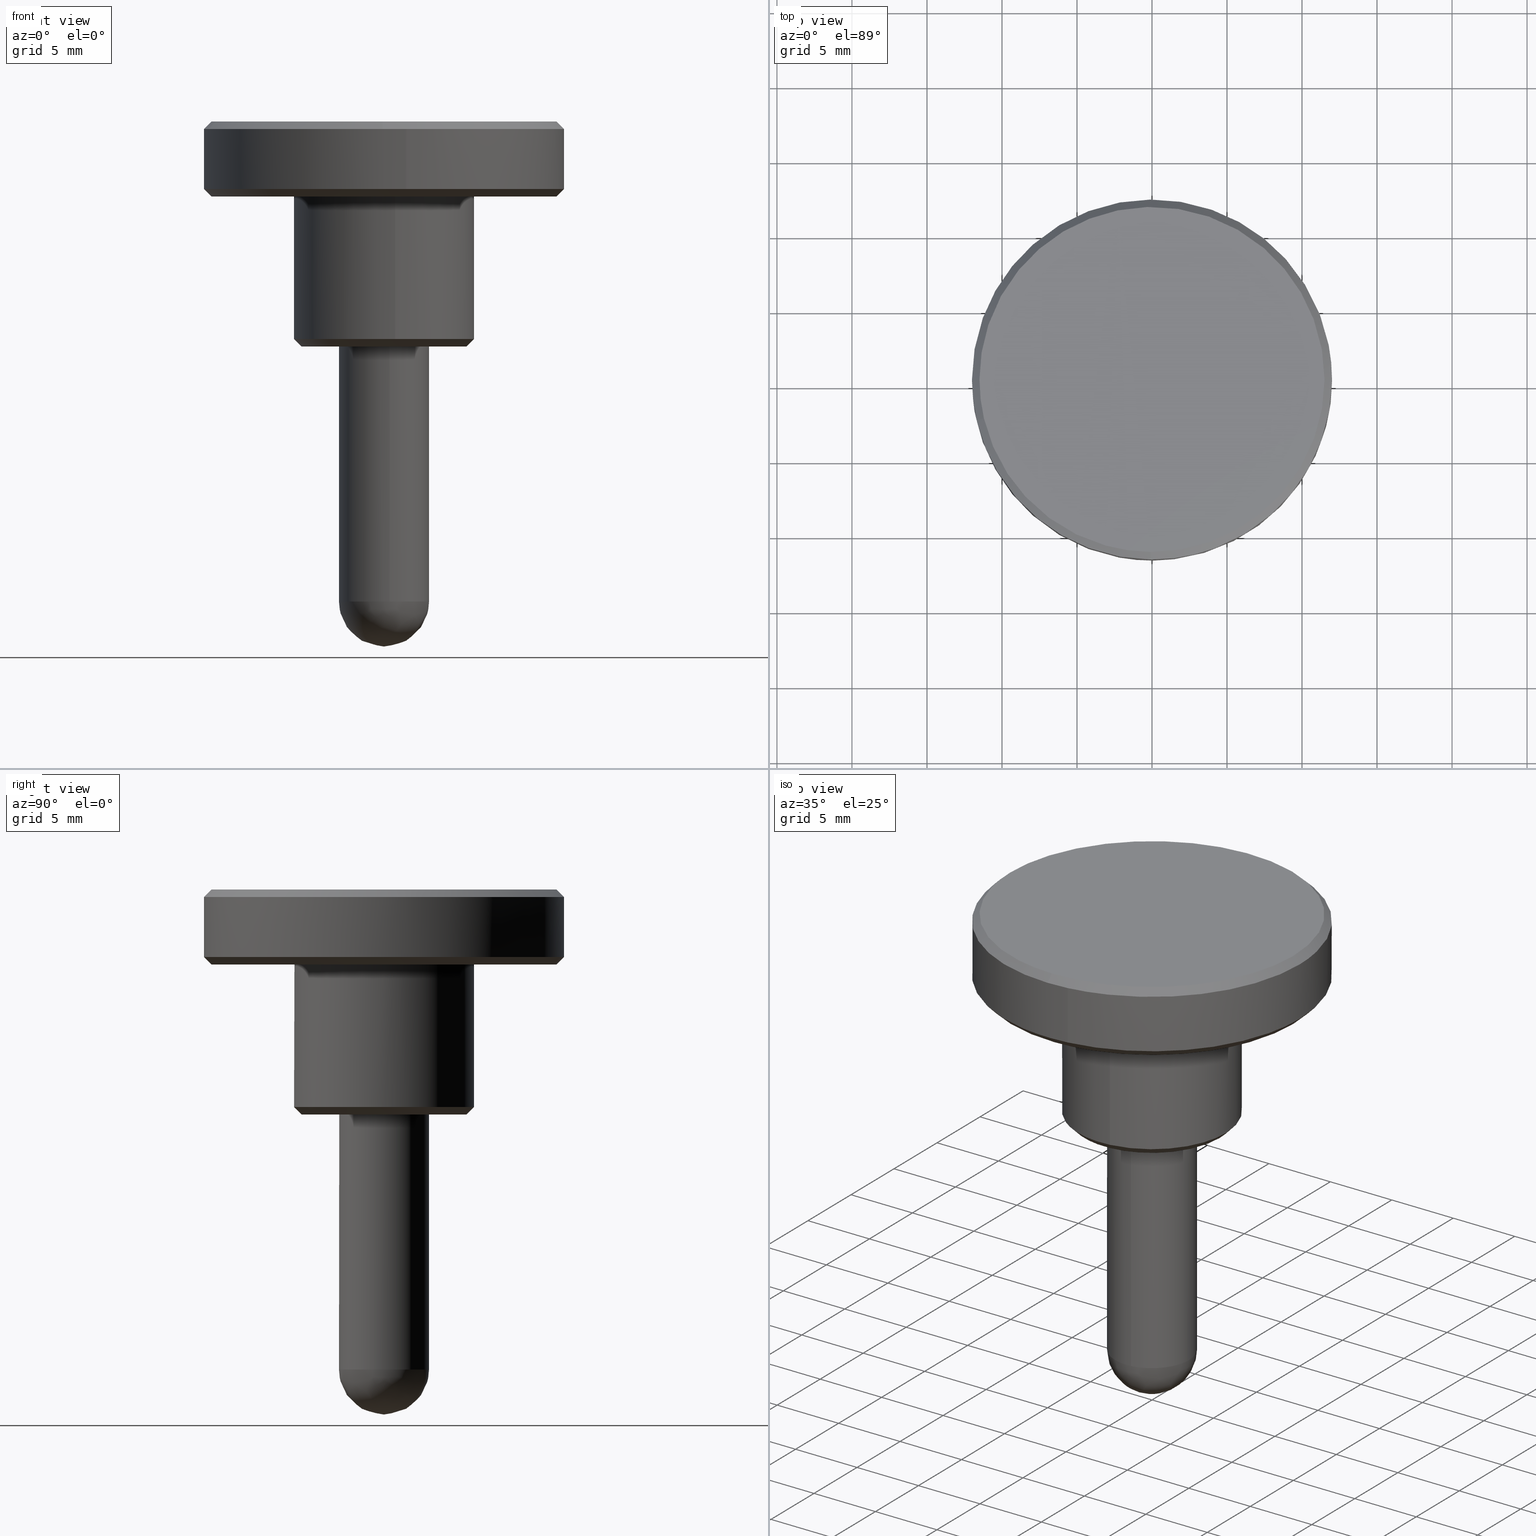
[diagram: canonical four-view strip — front | top / right | iso, engineering-drawing reading convention]
A machine part, canonical four-view strip (front | top / right | iso — engineering-drawing reading convention). The complete STEP part file that produces these views, byte-faithful:
ISO-10303-21;
HEADER;
/****************************************************************
 * Generated by software with PDE/Lib inside                    *
 * PDElib Version 4.4.1-0003, patched  Thursday August 19 11:58 *
 * International Technegroup Inc. (www.iti-oh.com)              *
 ****************************************************************/
FILE_DESCRIPTION((''),'2;1');
FILE_NAME('','2005-07-15T10:47:01',(''),(''),'','CADfix','');
FILE_SCHEMA(('AUTOMOTIVE_DESIGN'));
ENDSEC;
DATA;
#5=APPLICATION_CONTEXT('automotive design');
#6=APPLICATION_PROTOCOL_DEFINITION('Draft International Standard','automotive_design',1998,#5);
#7=PRODUCT_CONTEXT('None',#5,'mechanical');
#8=PRODUCT('knob','','None',(#7));
#9=PRODUCT_RELATED_PRODUCT_CATEGORY('part','description',(#8));
#10=PRODUCT_DEFINITION_FORMATION('None','None',#8);
#11=PRODUCT_DEFINITION_CONTEXT('part definition',#5,'design');
#12=PRODUCT_DEFINITION('None','None',#10,#11);
#18=(NAMED_UNIT(*)PLANE_ANGLE_UNIT()SI_UNIT($,.RADIAN.));
#19=DIMENSIONAL_EXPONENTS(0.0,0.0,0.0,0.0,0.0,0.0,0.0);
#20=PLANE_ANGLE_MEASURE_WITH_UNIT(PLANE_ANGLE_MEASURE(0.017453292500000),#18);
#24=(CONVERSION_BASED_UNIT('DEGREE',#20)NAMED_UNIT(#19)PLANE_ANGLE_UNIT());
#28=(NAMED_UNIT(*)SI_UNIT($,.STERADIAN.)SOLID_ANGLE_UNIT());
#32=(LENGTH_UNIT()NAMED_UNIT(*)SI_UNIT(.MILLI.,.METRE.));
#34=UNCERTAINTY_MEASURE_WITH_UNIT(LENGTH_MEASURE(0.001000000000000),#32,'DISTANCE_ACCURACY_VALUE','');
#36=(GEOMETRIC_REPRESENTATION_CONTEXT(3)GLOBAL_UNCERTAINTY_ASSIGNED_CONTEXT((#34))GLOBAL_UNIT_ASSIGNED_CONTEXT((#24,#28,#32))REPRESENTATION_CONTEXT('None','None'));
#37=AXIS2_PLACEMENT_3D('',#38,#39,#40);
#38=CARTESIAN_POINT('',(0.0,0.0,0.0));
#39=DIRECTION('',(0.0,0.0,1.0));
#40=DIRECTION('',(1.0,0.0,0.0));
#41=ADVANCED_BREP_SHAPE_REPRESENTATION('',(#37,#1164),#36);
#42=PRODUCT_DEFINITION_SHAPE('','',#12);
#43=SHAPE_DEFINITION_REPRESENTATION(#42,#41);
#44=CARTESIAN_POINT('',(-11.191331034639012,-2.591672418174083,15.012500000000003));
#45=CARTESIAN_POINT('',(-11.498961770299591,-1.263264794176366,15.012500000000003));
#46=CARTESIAN_POINT('',(-11.487062591199610,0.100246076537570,15.012499999999999));
#47=CARTESIAN_POINT('',(-11.386816514662039,11.587308667737178,15.012500000000008));
#48=CARTESIAN_POINT('',(0.100246076537570,11.487062591199610,15.012499999999999));
#49=CARTESIAN_POINT('',(11.587308667737178,11.386816514662039,15.012500000000008));
#50=CARTESIAN_POINT('',(11.487062591199610,-0.100246076537570,15.012499999999999));
#51=CARTESIAN_POINT('',(11.386816514662039,-11.587308667737178,15.012500000000008));
#52=CARTESIAN_POINT('',(-0.100246076537570,-11.487062591199610,15.012499999999999));
#53=CARTESIAN_POINT('',(-11.703100008230697,-2.710187144369708,14.487187499999997));
#54=CARTESIAN_POINT('',(-12.024798406204811,-1.321032697305058,14.487187500000001));
#55=CARTESIAN_POINT('',(-12.012355088909320,0.104830234716560,14.487187499999999));
#56=CARTESIAN_POINT('',(-11.907524854192760,12.117185323625877,14.487187500000005));
#57=CARTESIAN_POINT('',(0.104830234716560,12.012355088909320,14.487187499999999));
#58=CARTESIAN_POINT('',(12.117185323625877,11.907524854192760,14.487187500000005));
#59=CARTESIAN_POINT('',(12.012355088909320,-0.104830234716560,14.487187499999999));
#60=CARTESIAN_POINT('',(11.907524854192760,-12.117185323625877,14.487187500000005));
#61=CARTESIAN_POINT('',(-0.104830234716560,-12.012355088909320,14.487187499999999));
#69=(BOUNDED_SURFACE()B_SPLINE_SURFACE(2,1,((#44,#53),(#45,#54),(#46,#55),(#47,#56),(#48,#57),(#49,#58),(#50,#59),(#51,#60),(#52,#61)),.UNSPECIFIED.,.F.,.F.,.U.)B_SPLINE_SURFACE_WITH_KNOTS((3,2,2,2,3),(2,2),(0.0,3.184556710236832,23.088036149217022,42.991515588197210,62.894995027177401),(0.0,1.0),.UNSPECIFIED.)GEOMETRIC_REPRESENTATION_ITEM()RATIONAL_B_SPLINE_SURFACE(((0.921270302782944,0.921270302782944),(0.953137084989848,0.953137084989848),(1.0,1.0),(0.707106781186548,0.707106781186548),(1.0,1.0),(0.707106781186548,0.707106781186548),(1.0,1.0),(0.707106781186548,0.707106781186548),(1.0,1.0)))REPRESENTATION_ITEM('')SURFACE());
#70=CARTESIAN_POINT('',(-11.690617838139890,-2.707296541319999,14.499999999996749));
#71=VERTEX_POINT('',#70);
#72=CARTESIAN_POINT('',(-12.0,0.0,14.500000000000000));
#73=VERTEX_POINT('',#72);
#74=CARTESIAN_POINT('',(-11.690617838139891,-2.707296541319999,14.499999999996758));
#75=CARTESIAN_POINT('',(-12.000000000000004,-1.371325928185463,14.499999999999995));
#76=CARTESIAN_POINT('',(-12.0,0.0,14.500000000000000));
#84=(BOUNDED_CURVE()B_SPLINE_CURVE(2,(#74,#75,#76),.UNSPECIFIED.,.F.,.U.)B_SPLINE_CURVE_WITH_KNOTS((3,3),(0.961422971783841,1.0),.UNSPECIFIED.)CURVE()GEOMETRIC_REPRESENTATION_ITEM()RATIONAL_B_SPLINE_CURVE((0.923556557441540,0.954804200134047,1.0))REPRESENTATION_ITEM(''));
#85=EDGE_CURVE('',#71,#73,#84,.T.);
#86=ORIENTED_EDGE('',*,*,#85,.F.);
#87=CARTESIAN_POINT('',(-11.203508761551880,-2.594492518754810,14.999999999998041));
#88=VERTEX_POINT('',#87);
#89=CARTESIAN_POINT('',(-11.203508761551880,-2.594492518754810,14.999999999998041));
#90=CARTESIAN_POINT('',(-11.690617838139890,-2.707296541319999,14.499999999996749));
#91=QUASI_UNIFORM_CURVE('',1,(#89,#90),.UNSPECIFIED.,.F.,.U.);
#92=EDGE_CURVE('',#88,#71,#91,.T.);
#93=ORIENTED_EDGE('',*,*,#92,.F.);
#94=CARTESIAN_POINT('',(-11.500000000000000,0.0,15.0));
#95=VERTEX_POINT('',#94);
#96=CARTESIAN_POINT('',(-11.500000000000000,0.0,15.0));
#97=CARTESIAN_POINT('',(-11.500000000000002,-1.314187347834063,15.0));
#98=CARTESIAN_POINT('',(-11.203508761551882,-2.594492518754810,14.999999999998044));
#106=(BOUNDED_CURVE()B_SPLINE_CURVE(2,(#96,#97,#98),.UNSPECIFIED.,.F.,.U.)B_SPLINE_CURVE_WITH_KNOTS((3,3),(0.500000000000000,0.538577028215869),.UNSPECIFIED.)CURVE()GEOMETRIC_REPRESENTATION_ITEM()RATIONAL_B_SPLINE_CURVE((1.0,0.954804200134387,0.923556557442010))REPRESENTATION_ITEM(''));
#107=EDGE_CURVE('',#95,#88,#106,.T.);
#108=ORIENTED_EDGE('',*,*,#107,.F.);
#109=CARTESIAN_POINT('',(11.500000000000000,0.0,15.0));
#110=VERTEX_POINT('',#109);
#111=CARTESIAN_POINT('',(11.500000000000000,0.0,15.0));
#112=CARTESIAN_POINT('',(11.500000000000000,11.500000000000000,14.999999999999995));
#113=CARTESIAN_POINT('',(0.0,11.500000000000000,15.0));
#114=CARTESIAN_POINT('',(-11.500000000000000,11.500000000000000,14.999999999999995));
#115=CARTESIAN_POINT('',(-11.500000000000000,0.0,15.0));
#123=(BOUNDED_CURVE()B_SPLINE_CURVE(2,(#111,#112,#113,#114,#115),.UNSPECIFIED.,.F.,.U.)B_SPLINE_CURVE_WITH_KNOTS((3,2,3),(0.0,0.250000000000000,0.500000000000000),.UNSPECIFIED.)CURVE()GEOMETRIC_REPRESENTATION_ITEM()RATIONAL_B_SPLINE_CURVE((1.0,0.707106781186548,1.0,0.707106781186548,1.0))REPRESENTATION_ITEM(''));
#124=EDGE_CURVE('',#110,#95,#123,.T.);
#125=ORIENTED_EDGE('',*,*,#124,.F.);
#126=CARTESIAN_POINT('',(-0.100355158267969,-11.499562115242620,14.999999999995000));
#127=VERTEX_POINT('',#126);
#128=CARTESIAN_POINT('',(-0.100355158267969,-11.499562115242618,14.999999999995005));
#129=CARTESIAN_POINT('',(-0.050178534474695,-11.499999999999998,15.000000000000007));
#130=CARTESIAN_POINT('',(0.0,-11.500000000000000,15.0));
#131=CARTESIAN_POINT('',(11.500000000000000,-11.500000000000000,14.999999999999995));
#132=CARTESIAN_POINT('',(11.500000000000000,0.0,15.0));
#140=(BOUNDED_CURVE()B_SPLINE_CURVE(2,(#128,#129,#130,#131,#132),.UNSPECIFIED.,.F.,.U.)B_SPLINE_CURVE_WITH_KNOTS((3,2,3),(0.748460105663891,0.750000000000000,1.0),.UNSPECIFIED.)CURVE()GEOMETRIC_REPRESENTATION_ITEM()RATIONAL_B_SPLINE_CURVE((0.996414028097809,0.998195901565058,1.0,0.707106781186548,1.0))REPRESENTATION_ITEM(''));
#141=EDGE_CURVE('',#127,#110,#140,.T.);
#142=ORIENTED_EDGE('',*,*,#141,.F.);
#143=CARTESIAN_POINT('',(-0.104718426022017,-11.999543076775341,14.499999999994360));
#144=VERTEX_POINT('',#143);
#145=CARTESIAN_POINT('',(-0.100355158267969,-11.499562115242620,14.999999999995000));
#146=CARTESIAN_POINT('',(-0.104718426022017,-11.999543076775341,14.499999999994360));
#147=QUASI_UNIFORM_CURVE('',1,(#145,#146),.UNSPECIFIED.,.F.,.U.);
#148=EDGE_CURVE('',#127,#144,#147,.T.);
#149=ORIENTED_EDGE('',*,*,#148,.T.);
#150=CARTESIAN_POINT('',(1.489527415792063,-11.907195642867739,14.499999999999980));
#151=VERTEX_POINT('',#150);
#152=CARTESIAN_POINT('',(1.489527415792063,-11.907195642867746,14.499999999999980));
#153=CARTESIAN_POINT('',(0.747654775429069,-12.000000000000004,14.499999999999996));
#154=CARTESIAN_POINT('',(0.0,-12.0,14.500000000000000));
#155=CARTESIAN_POINT('',(-0.052360209889887,-12.0,14.499999999999995));
#156=CARTESIAN_POINT('',(-0.104718426022017,-11.999543076775334,14.499999999994357));
#164=(BOUNDED_CURVE()B_SPLINE_CURVE(2,(#152,#153,#154,#155,#156),.UNSPECIFIED.,.F.,.U.)B_SPLINE_CURVE_WITH_KNOTS((3,2,3),(0.728526192964051,0.750000000000000,0.751539894336204),.UNSPECIFIED.)CURVE()GEOMETRIC_REPRESENTATION_ITEM()RATIONAL_B_SPLINE_CURVE((0.954005666903070,0.974841870148247,1.0,0.998195901564946,0.996414028097588))REPRESENTATION_ITEM(''));
#165=EDGE_CURVE('',#151,#144,#164,.T.);
#166=ORIENTED_EDGE('',*,*,#165,.F.);
#167=CARTESIAN_POINT('',(12.0,0.0,14.500000000000000));
#168=VERTEX_POINT('',#167);
#169=CARTESIAN_POINT('',(12.0,0.0,14.500000000000000));
#170=CARTESIAN_POINT('',(12.000000000000002,-10.592390920023666,14.500000000000005));
#171=CARTESIAN_POINT('',(1.489527415792063,-11.907195642867746,14.499999999999980));
#179=(BOUNDED_CURVE()B_SPLINE_CURVE(2,(#169,#170,#171),.UNSPECIFIED.,.F.,.U.)B_SPLINE_CURVE_WITH_KNOTS((3,3),(0.500000000000000,0.728526192964051),.UNSPECIFIED.)CURVE()GEOMETRIC_REPRESENTATION_ITEM()RATIONAL_B_SPLINE_CURVE((1.0,0.732264911038300,0.954005666903070))REPRESENTATION_ITEM(''));
#180=EDGE_CURVE('',#168,#151,#179,.T.);
#181=ORIENTED_EDGE('',*,*,#180,.F.);
#182=CARTESIAN_POINT('',(-0.104707313741634,11.999543173734800,14.499999999999980));
#183=VERTEX_POINT('',#182);
#184=CARTESIAN_POINT('',(-0.104707313741634,11.999543173734805,14.499999999999984));
#185=CARTESIAN_POINT('',(-0.052354653411694,11.999999999999996,14.500000000000002));
#186=CARTESIAN_POINT('',(0.0,12.0,14.500000000000000));
#187=CARTESIAN_POINT('',(12.0,12.0,14.500000000000000));
#188=CARTESIAN_POINT('',(12.0,0.0,14.500000000000000));
#196=(BOUNDED_CURVE()B_SPLINE_CURVE(2,(#184,#185,#186,#187,#188),.UNSPECIFIED.,.F.,.U.)B_SPLINE_CURVE_WITH_KNOTS((3,2,3),(0.248460268782973,0.250000000000000,0.500000000000000),.UNSPECIFIED.)CURVE()GEOMETRIC_REPRESENTATION_ITEM()RATIONAL_B_SPLINE_CURVE((0.996414405601316,0.998196092670950,1.0,0.707106781186548,1.0))REPRESENTATION_ITEM(''));
#197=EDGE_CURVE('',#183,#168,#196,.T.);
#198=ORIENTED_EDGE('',*,*,#197,.F.);
#199=CARTESIAN_POINT('',(-12.0,0.0,14.500000000000000));
#200=CARTESIAN_POINT('',(-12.000000000000002,11.895745543670591,14.499999999999998));
#201=CARTESIAN_POINT('',(-0.104707313741634,11.999543173734805,14.499999999999984));
#209=(BOUNDED_CURVE()B_SPLINE_CURVE(2,(#199,#200,#201),.UNSPECIFIED.,.F.,.U.)B_SPLINE_CURVE_WITH_KNOTS((3,3),(0.0,0.248460268782973),.UNSPECIFIED.)CURVE()GEOMETRIC_REPRESENTATION_ITEM()RATIONAL_B_SPLINE_CURVE((1.0,0.708910688515598,0.996414405601316))REPRESENTATION_ITEM(''));
#210=EDGE_CURVE('',#73,#183,#209,.T.);
#211=ORIENTED_EDGE('',*,*,#210,.F.);
#212=EDGE_LOOP('',(#86,#93,#108,#125,#142,#149,#166,#181,#198,#211));
#213=FACE_OUTER_BOUND('',#212,.T.);
#214=ADVANCED_FACE('',(#213),#69,.T.);
#215=CARTESIAN_POINT('',(-0.100246076537570,-11.487062591199610,15.012499999999999));
#216=CARTESIAN_POINT('',(-9.149637732336018,-11.408089746632660,15.012500000000003));
#217=CARTESIAN_POINT('',(-11.191331034639012,-2.591672418174083,15.012500000000003));
#218=CARTESIAN_POINT('',(-0.104830234716560,-12.012355088909320,14.487187499999999));
#219=CARTESIAN_POINT('',(-9.568042004045996,-11.929770890922430,14.487187500000001));
#220=CARTESIAN_POINT('',(-11.703100008230697,-2.710187144369708,14.487187499999997));
#228=(BOUNDED_SURFACE()B_SPLINE_SURFACE(2,1,((#215,#218),(#216,#219),(#217,#220)),.UNSPECIFIED.,.F.,.F.,.U.)B_SPLINE_SURFACE_WITH_KNOTS((3,3),(2,2),(0.0,16.645809910381690),(0.0,1.0),.UNSPECIFIED.)GEOMETRIC_REPRESENTATION_ITEM()RATIONAL_B_SPLINE_SURFACE(((1.0,1.0),(0.753969696196700,0.753969696196700),(0.921270302782944,0.921270302782944)))REPRESENTATION_ITEM('')SURFACE());
#229=CARTESIAN_POINT('',(-0.104718426022017,-11.999543076775335,14.499999999994364));
#230=CARTESIAN_POINT('',(-9.557837021778633,-11.917046960508797,14.499999999999998));
#231=CARTESIAN_POINT('',(-11.690617838139897,-2.707296541319999,14.499999999996758));
#239=(BOUNDED_CURVE()B_SPLINE_CURVE(2,(#229,#230,#231),.UNSPECIFIED.,.F.,.U.)B_SPLINE_CURVE_WITH_KNOTS((3,3),(0.751539894336205,0.961422971783842),.UNSPECIFIED.)CURVE()GEOMETRIC_REPRESENTATION_ITEM()RATIONAL_B_SPLINE_CURVE((0.996414028097587,0.753549905437684,0.923556557441542))REPRESENTATION_ITEM(''));
#240=EDGE_CURVE('',#144,#71,#239,.T.);
#241=ORIENTED_EDGE('',*,*,#240,.F.);
#242=ORIENTED_EDGE('',*,*,#148,.F.);
#243=CARTESIAN_POINT('',(-11.203508761551882,-2.594492518754810,14.999999999998039));
#244=CARTESIAN_POINT('',(-9.159593812553178,-11.420503337159055,14.999999999999996));
#245=CARTESIAN_POINT('',(-0.100355158267969,-11.499562115242622,14.999999999994998));
#253=(BOUNDED_CURVE()B_SPLINE_CURVE(2,(#243,#244,#245),.UNSPECIFIED.,.F.,.U.)B_SPLINE_CURVE_WITH_KNOTS((3,3),(0.538577028215870,0.748460105663891),.UNSPECIFIED.)CURVE()GEOMETRIC_REPRESENTATION_ITEM()RATIONAL_B_SPLINE_CURVE((0.923556557442009,0.753549905437272,0.996414028097809))REPRESENTATION_ITEM(''));
#254=EDGE_CURVE('',#88,#127,#253,.T.);
#255=ORIENTED_EDGE('',*,*,#254,.F.);
#256=ORIENTED_EDGE('',*,*,#92,.T.);
#257=EDGE_LOOP('',(#241,#242,#255,#256));
#258=FACE_OUTER_BOUND('',#257,.T.);
#259=ADVANCED_FACE('',(#258),#228,.T.);
#260=CARTESIAN_POINT('',(9.406724469765697,-6.593647776452057,9.987500000000001));
#261=CARTESIAN_POINT('',(11.519179152623552,-3.579947343821037,9.987499999999999));
#262=CARTESIAN_POINT('',(11.487062591199660,0.100246076537570,9.987499999999999));
#263=CARTESIAN_POINT('',(11.386816514662092,11.587308667737231,9.987499999999999));
#264=CARTESIAN_POINT('',(-0.100246076537570,11.487062591199660,9.987499999999999));
#265=CARTESIAN_POINT('',(-11.587308667737231,11.386816514662092,9.987499999999999));
#266=CARTESIAN_POINT('',(-11.487062591199660,-0.100246076537570,9.987499999999999));
#267=CARTESIAN_POINT('',(-11.386816514662092,-11.587308667737231,9.987499999999999));
#268=CARTESIAN_POINT('',(0.100246076537570,-11.487062591199660,9.987499999999999));
#269=CARTESIAN_POINT('',(9.836885074599064,-6.895169047186953,10.512812500000004));
#270=CARTESIAN_POINT('',(12.045940310282912,-3.743654946785199,10.512812500000003));
#271=CARTESIAN_POINT('',(12.012355088909260,0.104830234716559,10.512812500000001));
#272=CARTESIAN_POINT('',(11.907524854192697,12.117185323625815,10.512812500000003));
#273=CARTESIAN_POINT('',(-0.104830234716559,12.012355088909260,10.512812500000001));
#274=CARTESIAN_POINT('',(-12.117185323625815,11.907524854192697,10.512812500000003));
#275=CARTESIAN_POINT('',(-12.012355088909260,-0.104830234716559,10.512812500000001));
#276=CARTESIAN_POINT('',(-11.907524854192697,-12.117185323625815,10.512812500000003));
#277=CARTESIAN_POINT('',(0.104830234716559,-12.012355088909260,10.512812500000001));
#285=(BOUNDED_SURFACE()B_SPLINE_SURFACE(2,1,((#260,#269),(#261,#270),(#262,#271),(#263,#272),(#264,#273),(#265,#274),(#266,#275),(#267,#276),(#268,#277)),.UNSPECIFIED.,.F.,.F.,.U.)B_SPLINE_SURFACE_WITH_KNOTS((3,2,2,2,3),(2,2),(0.0,7.961391775592033,27.864871214572119,47.768350653552197,67.671830092532289),(0.0,1.0),.UNSPECIFIED.)GEOMETRIC_REPRESENTATION_ITEM()RATIONAL_B_SPLINE_SURFACE(((0.859411254969543,0.859411254969543),(0.882842712474619,0.882842712474619),(1.0,1.0),(0.707106781186548,0.707106781186548),(1.0,1.0),(0.707106781186548,0.707106781186548),(1.0,1.0),(0.707106781186548,0.707106781186548),(1.0,1.0)))REPRESENTATION_ITEM('')SURFACE());
#286=CARTESIAN_POINT('',(11.500000000000000,0.0,10.0));
#287=VERTEX_POINT('',#286);
#288=CARTESIAN_POINT('',(9.416960296174523,-6.600822583608252,10.000000000000011));
#289=VERTEX_POINT('',#288);
#290=CARTESIAN_POINT('',(11.500000000000000,0.0,10.0));
#291=CARTESIAN_POINT('',(11.500000000000004,-3.629086570737488,10.0));
#292=CARTESIAN_POINT('',(9.416960296174523,-6.600822583608252,10.000000000000007));
#300=(BOUNDED_CURVE()B_SPLINE_CURVE(2,(#290,#291,#292),.UNSPECIFIED.,.F.,.U.)B_SPLINE_CURVE_WITH_KNOTS((3,3),(0.0,0.098673726202875),.UNSPECIFIED.)CURVE()GEOMETRIC_REPRESENTATION_ITEM()RATIONAL_B_SPLINE_CURVE((1.0,0.884396538880490,0.860049271925870))REPRESENTATION_ITEM(''));
#301=EDGE_CURVE('',#287,#289,#300,.T.);
#302=ORIENTED_EDGE('',*,*,#301,.F.);
#303=CARTESIAN_POINT('',(-11.500000000000000,0.0,10.0));
#304=VERTEX_POINT('',#303);
#305=CARTESIAN_POINT('',(-11.500000000000000,0.0,10.0));
#306=CARTESIAN_POINT('',(-11.500000000000000,11.500000000000000,10.000000000000002));
#307=CARTESIAN_POINT('',(0.0,11.500000000000000,10.0));
#308=CARTESIAN_POINT('',(11.500000000000000,11.500000000000000,10.000000000000002));
#309=CARTESIAN_POINT('',(11.500000000000000,0.0,10.0));
#317=(BOUNDED_CURVE()B_SPLINE_CURVE(2,(#305,#306,#307,#308,#309),.UNSPECIFIED.,.F.,.U.)B_SPLINE_CURVE_WITH_KNOTS((3,2,3),(0.500000000000000,0.750000000000000,1.0),.UNSPECIFIED.)CURVE()GEOMETRIC_REPRESENTATION_ITEM()RATIONAL_B_SPLINE_CURVE((1.0,0.707106781186548,1.0,0.707106781186548,1.0))REPRESENTATION_ITEM(''));
#318=EDGE_CURVE('',#304,#287,#317,.T.);
#319=ORIENTED_EDGE('',*,*,#318,.F.);
#320=CARTESIAN_POINT('',(0.100355158267969,-11.499562115242639,10.000000000004990));
#321=VERTEX_POINT('',#320);
#322=CARTESIAN_POINT('',(0.100355158267969,-11.499562115242638,10.000000000004988));
#323=CARTESIAN_POINT('',(0.050178534474695,-11.499999999999998,10.0));
#324=CARTESIAN_POINT('',(0.0,-11.500000000000000,10.0));
#325=CARTESIAN_POINT('',(-11.500000000000000,-11.500000000000000,10.000000000000002));
#326=CARTESIAN_POINT('',(-11.500000000000000,0.0,10.0));
#334=(BOUNDED_CURVE()B_SPLINE_CURVE(2,(#322,#323,#324,#325,#326),.UNSPECIFIED.,.F.,.U.)B_SPLINE_CURVE_WITH_KNOTS((3,2,3),(0.248460105663891,0.250000000000000,0.500000000000000),.UNSPECIFIED.)CURVE()GEOMETRIC_REPRESENTATION_ITEM()RATIONAL_B_SPLINE_CURVE((0.996414028097809,0.998195901565058,1.0,0.707106781186548,1.0))REPRESENTATION_ITEM(''));
#335=EDGE_CURVE('',#321,#304,#334,.T.);
#336=ORIENTED_EDGE('',*,*,#335,.F.);
#337=CARTESIAN_POINT('',(0.104717973508582,-11.999542532737770,10.499999452039960));
#338=VERTEX_POINT('',#337);
#339=CARTESIAN_POINT('',(0.100355158267969,-11.499562115242639,10.000000000004990));
#340=CARTESIAN_POINT('',(0.104717973508582,-11.999542532737770,10.499999452039960));
#341=QUASI_UNIFORM_CURVE('',1,(#339,#340),.UNSPECIFIED.,.F.,.U.);
#342=EDGE_CURVE('',#321,#338,#341,.T.);
#343=ORIENTED_EDGE('',*,*,#342,.T.);
#344=CARTESIAN_POINT('',(-12.0,0.0,10.500000000000000));
#345=VERTEX_POINT('',#344);
#346=CARTESIAN_POINT('',(-12.0,0.0,10.500000000000000));
#347=CARTESIAN_POINT('',(-12.0,-12.0,10.500000000000002));
#348=CARTESIAN_POINT('',(0.0,-12.0,10.500000000000000));
#349=CARTESIAN_POINT('',(0.052359762132736,-12.0,10.500000000000000));
#350=CARTESIAN_POINT('',(0.104717973508581,-11.999542532737768,10.499999452039965));
#358=(BOUNDED_CURVE()B_SPLINE_CURVE(2,(#346,#347,#348,#349,#350),.UNSPECIFIED.,.F.,.U.)B_SPLINE_CURVE_WITH_KNOTS((3,2,3),(0.0,0.250000000000000,0.251539881191590),.UNSPECIFIED.)CURVE()GEOMETRIC_REPRESENTATION_ITEM()RATIONAL_B_SPLINE_CURVE((1.0,0.707106781186548,1.0,0.998195916964820,0.996414058517912))REPRESENTATION_ITEM(''));
#359=EDGE_CURVE('',#345,#338,#358,.T.);
#360=ORIENTED_EDGE('',*,*,#359,.F.);
#361=CARTESIAN_POINT('',(-0.104707174263910,11.999543174951750,10.500000000000000));
#362=VERTEX_POINT('',#361);
#363=CARTESIAN_POINT('',(-0.104707174263910,11.999543174951752,10.500000000000000));
#364=CARTESIAN_POINT('',(-12.0,11.895745681947080,10.500000000000000));
#365=CARTESIAN_POINT('',(-12.0,0.0,10.500000000000000));
#373=(BOUNDED_CURVE()B_SPLINE_CURVE(2,(#363,#364,#365),.UNSPECIFIED.,.F.,.U.)B_SPLINE_CURVE_WITH_KNOTS((3,3),(0.751539729169616,1.0),.UNSPECIFIED.)CURVE()GEOMETRIC_REPRESENTATION_ITEM()RATIONAL_B_SPLINE_CURVE((0.996414410339607,0.708910686116906,1.0))REPRESENTATION_ITEM(''));
#374=EDGE_CURVE('',#362,#345,#373,.T.);
#375=ORIENTED_EDGE('',*,*,#374,.F.);
#376=CARTESIAN_POINT('',(12.0,0.0,10.500000000000000));
#377=VERTEX_POINT('',#376);
#378=CARTESIAN_POINT('',(12.0,0.0,10.500000000000000));
#379=CARTESIAN_POINT('',(12.0,12.0,10.500000000000002));
#380=CARTESIAN_POINT('',(0.0,12.0,10.500000000000000));
#381=CARTESIAN_POINT('',(-0.052354583668849,12.000000000000005,10.499999999999996));
#382=CARTESIAN_POINT('',(-0.104707174263910,11.999543174951752,10.500000000000000));
#390=(BOUNDED_CURVE()B_SPLINE_CURVE(2,(#378,#379,#380,#381,#382),.UNSPECIFIED.,.F.,.U.)B_SPLINE_CURVE_WITH_KNOTS((3,2,3),(0.500000000000000,0.750000000000000,0.751539729169616),.UNSPECIFIED.)CURVE()GEOMETRIC_REPRESENTATION_ITEM()RATIONAL_B_SPLINE_CURVE((1.0,0.707106781186548,1.0,0.998196095069641,0.996414410339607))REPRESENTATION_ITEM(''));
#391=EDGE_CURVE('',#377,#362,#390,.T.);
#392=ORIENTED_EDGE('',*,*,#391,.F.);
#393=CARTESIAN_POINT('',(9.826393352525180,-6.887814869859507,10.500000000000400));
#394=VERTEX_POINT('',#393);
#395=CARTESIAN_POINT('',(9.826393352525180,-6.887814869859507,10.500000000000398));
#396=CARTESIAN_POINT('',(12.000000000000005,-3.786872943387931,10.500000000000000));
#397=CARTESIAN_POINT('',(12.0,0.0,10.500000000000000));
#405=(BOUNDED_CURVE()B_SPLINE_CURVE(2,(#395,#396,#397),.UNSPECIFIED.,.F.,.U.)B_SPLINE_CURVE_WITH_KNOTS((3,3),(0.401326273796902,0.500000000000000),.UNSPECIFIED.)CURVE()GEOMETRIC_REPRESENTATION_ITEM()RATIONAL_B_SPLINE_CURVE((0.860049271925760,0.884396538880229,1.0))REPRESENTATION_ITEM(''));
#406=EDGE_CURVE('',#394,#377,#405,.T.);
#407=ORIENTED_EDGE('',*,*,#406,.F.);
#408=CARTESIAN_POINT('',(9.416960296174523,-6.600822583608252,10.000000000000011));
#409=CARTESIAN_POINT('',(9.826393352525180,-6.887814869859507,10.500000000000400));
#410=QUASI_UNIFORM_CURVE('',1,(#408,#409),.UNSPECIFIED.,.F.,.U.);
#411=EDGE_CURVE('',#289,#394,#410,.T.);
#412=ORIENTED_EDGE('',*,*,#411,.F.);
#413=EDGE_LOOP('',(#302,#319,#336,#343,#360,#375,#392,#407,#412));
#414=FACE_OUTER_BOUND('',#413,.T.);
#415=ADVANCED_FACE('',(#414),#285,.T.);
#416=CARTESIAN_POINT('',(0.100246076537570,-11.487062591199660,9.987499999999999));
#417=CARTESIAN_POINT('',(6.012851147515387,-11.435464068446271,9.987499999999999));
#418=CARTESIAN_POINT('',(9.406724469765697,-6.593647776452057,9.987500000000001));
#419=CARTESIAN_POINT('',(0.104830234716559,-12.012355088909260,10.512812500000001));
#420=CARTESIAN_POINT('',(6.287813138238249,-11.958397014557701,10.512812500000004));
#421=CARTESIAN_POINT('',(9.836885074599064,-6.895169047186953,10.512812500000004));
#429=(BOUNDED_SURFACE()B_SPLINE_SURFACE(2,1,((#416,#419),(#417,#420),(#418,#421)),.UNSPECIFIED.,.F.,.F.,.U.)B_SPLINE_SURFACE_WITH_KNOTS((3,3),(2,2),(0.0,11.860688764435860),(0.0,1.0),.UNSPECIFIED.)GEOMETRIC_REPRESENTATION_ITEM()RATIONAL_B_SPLINE_SURFACE(((1.0,1.0),(0.824264068711928,0.824264068711928),(0.859411254969543,0.859411254969543)))REPRESENTATION_ITEM('')SURFACE());
#430=CARTESIAN_POINT('',(9.416960296174523,-6.600822583608252,10.000000000000005));
#431=CARTESIAN_POINT('',(6.019393967071236,-11.447907446067143,10.0));
#432=CARTESIAN_POINT('',(0.100355158267969,-11.499562115242638,10.000000000004988));
#440=(BOUNDED_CURVE()B_SPLINE_CURVE(2,(#430,#431,#432),.UNSPECIFIED.,.F.,.U.)B_SPLINE_CURVE_WITH_KNOTS((3,3),(0.098673726202875,0.248460105663891),.UNSPECIFIED.)CURVE()GEOMETRIC_REPRESENTATION_ITEM()RATIONAL_B_SPLINE_CURVE((0.860049271925870,0.823090203820899,0.996414028097809))REPRESENTATION_ITEM(''));
#441=EDGE_CURVE('',#289,#321,#440,.T.);
#442=ORIENTED_EDGE('',*,*,#441,.F.);
#443=ORIENTED_EDGE('',*,*,#411,.T.);
#444=CARTESIAN_POINT('',(1.489533232262267,-11.907194915259360,10.500000000000000));
#445=VERTEX_POINT('',#444);
#446=CARTESIAN_POINT('',(1.489533232262267,-11.907194915259359,10.500000000000002));
#447=CARTESIAN_POINT('',(6.771180838092149,-11.246486017322699,10.500000000000000));
#448=CARTESIAN_POINT('',(9.826393352525180,-6.887814869859507,10.500000000000398));
#456=(BOUNDED_CURVE()B_SPLINE_CURVE(2,(#446,#447,#448),.UNSPECIFIED.,.F.,.U.)B_SPLINE_CURVE_WITH_KNOTS((3,3),(0.271473889416736,0.401326273796901),.UNSPECIFIED.)CURVE()GEOMETRIC_REPRESENTATION_ITEM()RATIONAL_B_SPLINE_CURVE((0.954005507033687,0.828008821150943,0.860049271925760))REPRESENTATION_ITEM(''));
#457=EDGE_CURVE('',#445,#394,#456,.T.);
#458=ORIENTED_EDGE('',*,*,#457,.F.);
#459=CARTESIAN_POINT('',(0.104717973508581,-11.999542532737770,10.499999452039967));
#460=CARTESIAN_POINT('',(0.799800049863691,-11.993477243204127,10.500000000000004));
#461=CARTESIAN_POINT('',(1.489533232262267,-11.907194915259359,10.500000000000002));
#469=(BOUNDED_CURVE()B_SPLINE_CURVE(2,(#459,#460,#461),.UNSPECIFIED.,.F.,.U.)B_SPLINE_CURVE_WITH_KNOTS((3,3),(0.251539881191590,0.271473889416736),.UNSPECIFIED.)CURVE()GEOMETRIC_REPRESENTATION_ITEM()RATIONAL_B_SPLINE_CURVE((0.996414058517911,0.973347616034741,0.954005507033687))REPRESENTATION_ITEM(''));
#470=EDGE_CURVE('',#338,#445,#469,.T.);
#471=ORIENTED_EDGE('',*,*,#470,.F.);
#472=ORIENTED_EDGE('',*,*,#342,.F.);
#473=EDGE_LOOP('',(#442,#443,#458,#471,#472));
#474=FACE_OUTER_BOUND('',#473,.T.);
#475=ADVANCED_FACE('',(#474),#429,.T.);
#476=CARTESIAN_POINT('',(-2.218132183033460,-5.019217655032625,-0.012499999999999));
#477=CARTESIAN_POINT('',(-1.135599143609664,-5.497619178731310,-0.012499999999999));
#478=CARTESIAN_POINT('',(0.047886863547327,-5.487291052814638,-0.012499999999999));
#479=CARTESIAN_POINT('',(5.535177916361964,-5.439404189267312,-0.012499999999999));
#480=CARTESIAN_POINT('',(5.487291052814638,0.047886863547327,-0.012499999999999));
#481=CARTESIAN_POINT('',(5.439404189267312,5.535177916361964,-0.012499999999999));
#482=CARTESIAN_POINT('',(-0.047886863547327,5.487291052814638,-0.012499999999999));
#483=CARTESIAN_POINT('',(-2.430471602149591,-5.499701987499018,0.512812499999944));
#484=CARTESIAN_POINT('',(-1.244308833837901,-6.023900376877514,0.512812499999944));
#485=CARTESIAN_POINT('',(0.052471021726316,-6.012583550524287,0.512812499999944));
#486=CARTESIAN_POINT('',(6.065054572250603,-5.960112528797970,0.512812499999944));
#487=CARTESIAN_POINT('',(6.012583550524287,0.052471021726316,0.512812499999944));
#488=CARTESIAN_POINT('',(5.960112528797970,6.065054572250603,0.512812499999944));
#489=CARTESIAN_POINT('',(-0.052471021726316,6.012583550524287,0.512812499999944));
#497=(BOUNDED_SURFACE()B_SPLINE_SURFACE(2,1,((#476,#483),(#477,#484),(#478,#485),(#479,#486),(#480,#487),(#481,#488),(#482,#489)),.UNSPECIFIED.,.F.,.F.,.U.)B_SPLINE_SURFACE_WITH_KNOTS((3,2,2,3),(2,2),(0.0,2.789459103767254,12.751813045793160,22.714166987819059),(0.0,1.0),.UNSPECIFIED.)GEOMETRIC_REPRESENTATION_ITEM()RATIONAL_B_SPLINE_SURFACE(((0.881905454174416,0.881905454174416),(0.917989898732233,0.917989898732233),(1.0,1.0),(0.707106781186548,0.707106781186548),(1.0,1.0),(0.707106781186548,0.707106781186548),(1.0,1.0)))REPRESENTATION_ITEM('')SURFACE());
#498=CARTESIAN_POINT('',(-2.425292591959119,-5.487982857427872,0.500000000002776));
#499=VERTEX_POINT('',#498);
#500=CARTESIAN_POINT('',(0.744762001736777,-5.953598034863651,0.499999999999997));
#501=VERTEX_POINT('',#500);
#502=CARTESIAN_POINT('',(-2.425292591959119,-5.487982857427872,0.500000000002776));
#503=CARTESIAN_POINT('',(-1.266693703546385,-6.0,0.499999999999945));
#504=CARTESIAN_POINT('',(0.0,-6.0,0.499999999999945));
#505=CARTESIAN_POINT('',(0.373826524648800,-6.0,0.499999999999945));
#506=CARTESIAN_POINT('',(0.744762001736777,-5.953598034863651,0.499999999999997));
#514=(BOUNDED_CURVE()B_SPLINE_CURVE(2,(#502,#503,#504,#505,#506),.UNSPECIFIED.,.F.,.U.)B_SPLINE_CURVE_WITH_KNOTS((3,2,3),(0.181361578458185,0.250000000000000,0.271473758706038),.UNSPECIFIED.)CURVE()GEOMETRIC_REPRESENTATION_ITEM()RATIONAL_B_SPLINE_CURVE((0.883326595750038,0.919585087121373,1.0,0.974841926770261,0.954005760692876))REPRESENTATION_ITEM(''));
#515=EDGE_CURVE('',#499,#501,#514,.T.);
#516=ORIENTED_EDGE('',*,*,#515,.F.);
#517=CARTESIAN_POINT('',(-2.223184875972508,-5.030650952638773,3.482324E-012));
#518=VERTEX_POINT('',#517);
#519=CARTESIAN_POINT('',(-2.223184875972508,-5.030650952638773,3.482324E-012));
#520=CARTESIAN_POINT('',(-2.425292591959119,-5.487982857427872,0.500000000002776));
#521=QUASI_UNIFORM_CURVE('',1,(#519,#520),.UNSPECIFIED.,.F.,.U.);
#522=EDGE_CURVE('',#518,#499,#521,.T.);
#523=ORIENTED_EDGE('',*,*,#522,.F.);
#524=CARTESIAN_POINT('',(5.500000000000000,0.0,0.0));
#525=VERTEX_POINT('',#524);
#526=CARTESIAN_POINT('',(5.500000000000000,0.0,0.0));
#527=CARTESIAN_POINT('',(5.500000000000001,-5.500000000000001,0.0));
#528=CARTESIAN_POINT('',(0.0,-5.500000000000000,0.0));
#529=CARTESIAN_POINT('',(-1.161135894928503,-5.500000000000001,0.0));
#530=CARTESIAN_POINT('',(-2.223184875972508,-5.030650952638773,3.482324E-012));
#538=(BOUNDED_CURVE()B_SPLINE_CURVE(2,(#526,#527,#528,#529,#530),.UNSPECIFIED.,.F.,.U.)B_SPLINE_CURVE_WITH_KNOTS((3,2,3),(0.500000000000000,0.750000000000000,0.818638421542412),.UNSPECIFIED.)CURVE()GEOMETRIC_REPRESENTATION_ITEM()RATIONAL_B_SPLINE_CURVE((1.0,0.707106781186548,1.0,0.919585087120673,0.883326595749407))REPRESENTATION_ITEM(''));
#539=EDGE_CURVE('',#525,#518,#538,.T.);
#540=ORIENTED_EDGE('',*,*,#539,.F.);
#541=CARTESIAN_POINT('',(-0.047995947410681,5.499790577714899,8.808580E-010));
#542=VERTEX_POINT('',#541);
#543=CARTESIAN_POINT('',(-0.047995947410681,5.499790577714899,8.808580E-010));
#544=CARTESIAN_POINT('',(-0.023998431675920,5.500000000000000,0.0));
#545=CARTESIAN_POINT('',(0.0,5.500000000000000,0.0));
#546=CARTESIAN_POINT('',(5.500000000000001,5.500000000000001,0.0));
#547=CARTESIAN_POINT('',(5.500000000000000,0.0,0.0));
#555=(BOUNDED_CURVE()B_SPLINE_CURVE(2,(#543,#544,#545,#546,#547),.UNSPECIFIED.,.F.,.U.)B_SPLINE_CURVE_WITH_KNOTS((3,2,3),(0.248460105526531,0.250000000000000,0.500000000000000),.UNSPECIFIED.)CURVE()GEOMETRIC_REPRESENTATION_ITEM()RATIONAL_B_SPLINE_CURVE((0.996414027779921,0.998195901404131,1.0,0.707106781186548,1.0))REPRESENTATION_ITEM(''));
#556=EDGE_CURVE('',#542,#525,#555,.T.);
#557=ORIENTED_EDGE('',*,*,#556,.F.);
#558=CARTESIAN_POINT('',(-0.052358838123554,5.999771541656370,0.499999999999923));
#559=VERTEX_POINT('',#558);
#560=CARTESIAN_POINT('',(-0.047995947410681,5.499790577714899,8.808580E-010));
#561=CARTESIAN_POINT('',(-0.052358838123554,5.999771541656370,0.499999999999923));
#562=QUASI_UNIFORM_CURVE('',1,(#560,#561),.UNSPECIFIED.,.F.,.U.);
#563=EDGE_CURVE('',#542,#559,#562,.T.);
#564=ORIENTED_EDGE('',*,*,#563,.T.);
#565=CARTESIAN_POINT('',(6.0,0.0,0.499999999999945));
#566=VERTEX_POINT('',#565);
#567=CARTESIAN_POINT('',(6.0,0.0,0.499999999999945));
#568=CARTESIAN_POINT('',(6.0,6.0,0.499999999999945));
#569=CARTESIAN_POINT('',(0.0,6.0,0.499999999999945));
#570=CARTESIAN_POINT('',(-0.026179917480160,6.0,0.499999999999945));
#571=CARTESIAN_POINT('',(-0.052358838123554,5.999771541656370,0.499999999999923));
#579=(BOUNDED_CURVE()B_SPLINE_CURVE(2,(#567,#568,#569,#570,#571),.UNSPECIFIED.,.F.,.U.)B_SPLINE_CURVE_WITH_KNOTS((3,2,3),(0.500000000000000,0.750000000000000,0.751539883329558),.UNSPECIFIED.)CURVE()GEOMETRIC_REPRESENTATION_ITEM()RATIONAL_B_SPLINE_CURVE((1.0,0.707106781186548,1.0,0.998195914460034,0.996414053570054))REPRESENTATION_ITEM(''));
#580=EDGE_CURVE('',#566,#559,#579,.T.);
#581=ORIENTED_EDGE('',*,*,#580,.F.);
#582=CARTESIAN_POINT('',(0.744762001736777,-5.953598034863651,0.499999999999997));
#583=CARTESIAN_POINT('',(6.0,-5.296196989604643,0.499999999999945));
#584=CARTESIAN_POINT('',(6.0,0.0,0.499999999999945));
#592=(BOUNDED_CURVE()B_SPLINE_CURVE(2,(#582,#583,#584),.UNSPECIFIED.,.F.,.U.)B_SPLINE_CURVE_WITH_KNOTS((3,3),(0.271473758706038,0.500000000000000),.UNSPECIFIED.)CURVE()GEOMETRIC_REPRESENTATION_ITEM()RATIONAL_B_SPLINE_CURVE((0.954005760692876,0.732264854416287,1.0))REPRESENTATION_ITEM(''));
#593=EDGE_CURVE('',#501,#566,#592,.T.);
#594=ORIENTED_EDGE('',*,*,#593,.F.);
#595=EDGE_LOOP('',(#516,#523,#540,#557,#564,#581,#594));
#596=FACE_OUTER_BOUND('',#595,.T.);
#597=ADVANCED_FACE('',(#596),#497,.T.);
#598=CARTESIAN_POINT('',(-0.047886863547327,5.487291052814638,-0.012499999999999));
#599=CARTESIAN_POINT('',(-5.535177916361964,5.439404189267312,-0.012499999999999));
#600=CARTESIAN_POINT('',(-5.487291052814638,-0.047886863547327,-0.012499999999999));
#601=CARTESIAN_POINT('',(-5.456395742852565,-3.588138727427808,-0.012499999999999));
#602=CARTESIAN_POINT('',(-2.218132183033460,-5.019217655032625,-0.012499999999999));
#603=CARTESIAN_POINT('',(-0.052471021726316,6.012583550524287,0.512812499999944));
#604=CARTESIAN_POINT('',(-6.065054572250603,5.960112528797970,0.512812499999944));
#605=CARTESIAN_POINT('',(-6.012583550524287,-0.052471021726316,0.512812499999944));
#606=CARTESIAN_POINT('',(-5.978730665616528,-3.931627406289205,0.512812499999944));
#607=CARTESIAN_POINT('',(-2.430471602149591,-5.499701987499018,0.512812499999944));
#615=(BOUNDED_SURFACE()B_SPLINE_SURFACE(2,1,((#598,#603),(#599,#604),(#600,#605),(#601,#606),(#602,#607)),.UNSPECIFIED.,.F.,.F.,.U.)B_SPLINE_SURFACE_WITH_KNOTS((3,2,3),(2,2),(0.0,9.962353942025903,17.135248780284549),(0.0,1.0),.UNSPECIFIED.)GEOMETRIC_REPRESENTATION_ITEM()RATIONAL_B_SPLINE_SURFACE(((1.0,1.0),(0.707106781186548,0.707106781186548),(1.0,1.0),(0.789116882454314,0.789116882454314),(0.881905454174416,0.881905454174416)))REPRESENTATION_ITEM('')SURFACE());
#616=CARTESIAN_POINT('',(-6.0,0.0,0.499999999999945));
#617=VERTEX_POINT('',#616);
#618=CARTESIAN_POINT('',(-6.0,0.0,0.499999999999945));
#619=CARTESIAN_POINT('',(-6.0,-3.908220015501913,0.499999999999945));
#620=CARTESIAN_POINT('',(-2.425292591959118,-5.487982857427872,0.500000000002776));
#628=(BOUNDED_CURVE()B_SPLINE_CURVE(2,(#618,#619,#620),.UNSPECIFIED.,.F.,.U.)B_SPLINE_CURVE_WITH_KNOTS((3,3),(0.0,0.181361578458185),.UNSPECIFIED.)CURVE()GEOMETRIC_REPRESENTATION_ITEM()RATIONAL_B_SPLINE_CURVE((1.0,0.787521694065175,0.883326595750038))REPRESENTATION_ITEM(''));
#629=EDGE_CURVE('',#617,#499,#628,.T.);
#630=ORIENTED_EDGE('',*,*,#629,.F.);
#631=CARTESIAN_POINT('',(-0.052358838123554,5.999771541656370,0.499999999999923));
#632=CARTESIAN_POINT('',(-6.0,5.947867635207732,0.499999999999945));
#633=CARTESIAN_POINT('',(-6.0,0.0,0.499999999999945));
#641=(BOUNDED_CURVE()B_SPLINE_CURVE(2,(#631,#632,#633),.UNSPECIFIED.,.F.,.U.)B_SPLINE_CURVE_WITH_KNOTS((3,3),(0.751539883329558,1.0),.UNSPECIFIED.)CURVE()GEOMETRIC_REPRESENTATION_ITEM()RATIONAL_B_SPLINE_CURVE((0.996414053570054,0.708910866726513,1.0))REPRESENTATION_ITEM(''));
#642=EDGE_CURVE('',#559,#617,#641,.T.);
#643=ORIENTED_EDGE('',*,*,#642,.F.);
#644=ORIENTED_EDGE('',*,*,#563,.F.);
#645=CARTESIAN_POINT('',(-5.500000000000000,0.0,0.0));
#646=VERTEX_POINT('',#645);
#647=CARTESIAN_POINT('',(-5.500000000000000,0.0,0.0));
#648=CARTESIAN_POINT('',(-5.500000000000001,5.452211653985746,0.0));
#649=CARTESIAN_POINT('',(-0.047995947410681,5.499790577714899,8.808580E-010));
#657=(BOUNDED_CURVE()B_SPLINE_CURVE(2,(#647,#648,#649),.UNSPECIFIED.,.F.,.U.)B_SPLINE_CURVE_WITH_KNOTS((3,3),(0.0,0.248460105526531),.UNSPECIFIED.)CURVE()GEOMETRIC_REPRESENTATION_ITEM()RATIONAL_B_SPLINE_CURVE((1.0,0.708910879782417,0.996414027779921))REPRESENTATION_ITEM(''));
#658=EDGE_CURVE('',#646,#542,#657,.T.);
#659=ORIENTED_EDGE('',*,*,#658,.F.);
#660=CARTESIAN_POINT('',(-2.223184875972508,-5.030650952638773,3.482324E-012));
#661=CARTESIAN_POINT('',(-5.500000000000000,-3.582535014195098,0.0));
#662=CARTESIAN_POINT('',(-5.500000000000000,0.0,0.0));
#670=(BOUNDED_CURVE()B_SPLINE_CURVE(2,(#660,#661,#662),.UNSPECIFIED.,.F.,.U.)B_SPLINE_CURVE_WITH_KNOTS((3,3),(0.818638421542413,1.0),.UNSPECIFIED.)CURVE()GEOMETRIC_REPRESENTATION_ITEM()RATIONAL_B_SPLINE_CURVE((0.883326595749407,0.787521694065875,1.0))REPRESENTATION_ITEM(''));
#671=EDGE_CURVE('',#518,#646,#670,.T.);
#672=ORIENTED_EDGE('',*,*,#671,.F.);
#673=ORIENTED_EDGE('',*,*,#522,.T.);
#674=EDGE_LOOP('',(#630,#643,#644,#659,#672,#673));
#675=FACE_OUTER_BOUND('',#674,.T.);
#676=ADVANCED_FACE('',(#675),#615,.T.);
#677=CARTESIAN_POINT('',(0.372384006239488,-2.976798641476615,-17.425000000000004));
#678=CARTESIAN_POINT('',(3.023198491507334,-2.645193774399663,-17.425000000000008));
#679=CARTESIAN_POINT('',(2.999885769192513,0.026179606495122,-17.425000000000001));
#680=CARTESIAN_POINT('',(2.973706162697392,3.026065375687634,-17.424999999999997));
#681=CARTESIAN_POINT('',(-0.026179606495122,2.999885769192513,-17.425000000000001));
#682=CARTESIAN_POINT('',(0.372384006239488,-2.976798641476615,0.435625000000002));
#683=CARTESIAN_POINT('',(3.023198491507334,-2.645193774399663,0.435625000000002));
#684=CARTESIAN_POINT('',(2.999885769192513,0.026179606495122,0.435625000000002));
#685=CARTESIAN_POINT('',(2.973706162697392,3.026065375687634,0.435625000000002));
#686=CARTESIAN_POINT('',(-0.026179606495122,2.999885769192513,0.435625000000002));
#694=(BOUNDED_SURFACE()B_SPLINE_SURFACE(2,1,((#677,#682),(#678,#683),(#679,#684),(#680,#685),(#681,#686)),.UNSPECIFIED.,.F.,.F.,.U.)B_SPLINE_SURFACE_WITH_KNOTS((3,2,3),(2,2),(0.0,4.572917728598967,9.543480477076107),(0.0,17.860625000000010),.UNSPECIFIED.)GEOMETRIC_REPRESENTATION_ITEM()RATIONAL_B_SPLINE_SURFACE(((0.956886118190660,0.956886118190660),(0.730538238691624,0.730538238691624),(1.0,1.0),(0.707106781186548,0.707106781186548),(1.0,1.0)))REPRESENTATION_ITEM('')SURFACE());
#695=CARTESIAN_POINT('',(0.372382066943663,-2.976798884072443,-17.0));
#696=VERTEX_POINT('',#695);
#697=CARTESIAN_POINT('',(3.0,0.0,-17.0));
#698=VERTEX_POINT('',#697);
#699=CARTESIAN_POINT('',(0.372382066943663,-2.976798884072443,-16.999999999999996));
#700=CARTESIAN_POINT('',(3.000000000000001,-2.648097539052714,-16.999999999999996));
#701=CARTESIAN_POINT('',(3.0,0.0,-17.0));
#709=(BOUNDED_CURVE()B_SPLINE_CURVE(2,(#699,#700,#701),.UNSPECIFIED.,.F.,.U.)B_SPLINE_CURVE_WITH_KNOTS((3,3),(0.771473819102890,1.0),.UNSPECIFIED.)CURVE()GEOMETRIC_REPRESENTATION_ITEM()RATIONAL_B_SPLINE_CURVE((0.954005643485778,0.732264925175600,1.0))REPRESENTATION_ITEM(''));
#710=EDGE_CURVE('',#696,#698,#709,.T.);
#711=ORIENTED_EDGE('',*,*,#710,.T.);
#712=CARTESIAN_POINT('',(-0.026179606528921,2.999885769192218,-17.0));
#713=VERTEX_POINT('',#712);
#714=CARTESIAN_POINT('',(3.0,0.0,-17.0));
#715=CARTESIAN_POINT('',(3.0,3.0,-17.000000000000004));
#716=CARTESIAN_POINT('',(0.0,3.0,-17.0));
#717=CARTESIAN_POINT('',(-0.013090052495906,3.0,-17.000000000000007));
#718=CARTESIAN_POINT('',(-0.026179606528921,2.999885769192219,-16.999999999999996));
#726=(BOUNDED_CURVE()B_SPLINE_CURVE(2,(#714,#715,#716,#717,#718),.UNSPECIFIED.,.F.,.U.)B_SPLINE_CURVE_WITH_KNOTS((3,2,3),(0.0,0.250000000000000,0.251539894338956),.UNSPECIFIED.)CURVE()GEOMETRIC_REPRESENTATION_ITEM()RATIONAL_B_SPLINE_CURVE((1.0,0.707106781186548,1.0,0.998195901561722,0.996414028091220))REPRESENTATION_ITEM(''));
#727=EDGE_CURVE('',#698,#713,#726,.T.);
#728=ORIENTED_EDGE('',*,*,#727,.T.);
#729=CARTESIAN_POINT('',(-0.026179606523298,2.999885769192267,-4.163336E-016));
#730=VERTEX_POINT('',#729);
#731=CARTESIAN_POINT('',(-0.026179606528921,2.999885769192218,-17.0));
#732=CARTESIAN_POINT('',(-0.026179606523298,2.999885769192267,-4.163336E-016));
#733=QUASI_UNIFORM_CURVE('',1,(#731,#732),.UNSPECIFIED.,.F.,.U.);
#734=EDGE_CURVE('',#713,#730,#733,.T.);
#735=ORIENTED_EDGE('',*,*,#734,.T.);
#736=CARTESIAN_POINT('',(3.0,0.0,0.0));
#737=VERTEX_POINT('',#736);
#738=CARTESIAN_POINT('',(-0.026179606523298,2.999885769192267,-4.163336E-016));
#739=CARTESIAN_POINT('',(-0.013090052490283,3.000000000000001,0.0));
#740=CARTESIAN_POINT('',(0.0,3.0,0.0));
#741=CARTESIAN_POINT('',(3.0,3.0,0.0));
#742=CARTESIAN_POINT('',(3.0,0.0,0.0));
#750=(BOUNDED_CURVE()B_SPLINE_CURVE(2,(#738,#739,#740,#741,#742),.UNSPECIFIED.,.F.,.U.)B_SPLINE_CURVE_WITH_KNOTS((3,2,3),(0.248460105661704,0.250000000000000,0.500000000000000),.UNSPECIFIED.)CURVE()GEOMETRIC_REPRESENTATION_ITEM()RATIONAL_B_SPLINE_CURVE((0.996414028092748,0.998195901562495,1.0,0.707106781186548,1.0))REPRESENTATION_ITEM(''));
#751=EDGE_CURVE('',#730,#737,#750,.T.);
#752=ORIENTED_EDGE('',*,*,#751,.T.);
#753=CARTESIAN_POINT('',(0.372384006262696,-2.976798641473713,-4.350921E-016));
#754=VERTEX_POINT('',#753);
#755=CARTESIAN_POINT('',(3.0,0.0,0.0));
#756=CARTESIAN_POINT('',(3.000000000000001,-2.648095800409071,0.0));
#757=CARTESIAN_POINT('',(0.372384006262696,-2.976798641473713,-4.350921E-016));
#765=(BOUNDED_CURVE()B_SPLINE_CURVE(2,(#755,#756,#757),.UNSPECIFIED.,.F.,.U.)B_SPLINE_CURVE_WITH_KNOTS((3,3),(0.500000000000000,0.728526071026669),.UNSPECIFIED.)CURVE()GEOMETRIC_REPRESENTATION_ITEM()RATIONAL_B_SPLINE_CURVE((1.0,0.732265053896829,0.954005430269615))REPRESENTATION_ITEM(''));
#766=EDGE_CURVE('',#737,#754,#765,.T.);
#767=ORIENTED_EDGE('',*,*,#766,.T.);
#768=CARTESIAN_POINT('',(0.372382066943663,-2.976798884072443,-17.0));
#769=CARTESIAN_POINT('',(0.372384006262696,-2.976798641473713,-4.350921E-016));
#770=QUASI_UNIFORM_CURVE('',1,(#768,#769),.UNSPECIFIED.,.F.,.U.);
#771=EDGE_CURVE('',#696,#754,#770,.T.);
#772=ORIENTED_EDGE('',*,*,#771,.F.);
#773=EDGE_LOOP('',(#711,#728,#735,#752,#767,#772));
#774=FACE_OUTER_BOUND('',#773,.T.);
#775=ADVANCED_FACE('',(#774),#694,.T.);
#776=CARTESIAN_POINT('',(-0.026179606495122,2.999885769192513,-17.425000000000001));
#777=CARTESIAN_POINT('',(-3.026065375687634,2.973706162697392,-17.424999999999997));
#778=CARTESIAN_POINT('',(-2.999885769192513,-0.026179606495122,-17.425000000000001));
#779=CARTESIAN_POINT('',(-2.973706162697392,-3.026065375687634,-17.424999999999997));
#780=CARTESIAN_POINT('',(0.026179606495122,-2.999885769192513,-17.425000000000001));
#781=CARTESIAN_POINT('',(0.199950476874521,-2.998369293780826,-17.425000000000001));
#782=CARTESIAN_POINT('',(0.372384006239488,-2.976798641476615,-17.425000000000004));
#783=CARTESIAN_POINT('',(-0.026179606495122,2.999885769192513,0.435625000000002));
#784=CARTESIAN_POINT('',(-3.026065375687634,2.973706162697392,0.435625000000002));
#785=CARTESIAN_POINT('',(-2.999885769192513,-0.026179606495122,0.435625000000002));
#786=CARTESIAN_POINT('',(-2.973706162697392,-3.026065375687634,0.435625000000002));
#787=CARTESIAN_POINT('',(0.026179606495122,-2.999885769192513,0.435625000000002));
#788=CARTESIAN_POINT('',(0.199950476874521,-2.998369293780826,0.435625000000002));
#789=CARTESIAN_POINT('',(0.372384006239488,-2.976798641476615,0.435625000000002));
#797=(BOUNDED_SURFACE()B_SPLINE_SURFACE(2,1,((#776,#783),(#777,#784),(#778,#785),(#779,#786),(#780,#787),(#781,#788),(#782,#789)),.UNSPECIFIED.,.F.,.F.,.U.)B_SPLINE_SURFACE_WITH_KNOTS((3,2,2,3),(2,2),(0.0,4.970562748477139,9.941125496954278,10.338770516832451),(0.0,17.860625000000010),.UNSPECIFIED.)GEOMETRIC_REPRESENTATION_ITEM()RATIONAL_B_SPLINE_SURFACE(((1.0,1.0),(0.707106781186548,0.707106781186548),(1.0,1.0),(0.707106781186548,0.707106781186548),(1.0,1.0),(0.976568542494924,0.976568542494924),(0.956886118190660,0.956886118190660)))REPRESENTATION_ITEM('')SURFACE());
#798=CARTESIAN_POINT('',(-3.0,0.0,-17.0));
#799=VERTEX_POINT('',#798);
#800=CARTESIAN_POINT('',(-3.0,0.0,-17.0));
#801=CARTESIAN_POINT('',(-3.0,-3.0,-17.000000000000004));
#802=CARTESIAN_POINT('',(0.0,-3.0,-17.0));
#803=CARTESIAN_POINT('',(0.186913801601756,-3.000000000000001,-17.000000000000004));
#804=CARTESIAN_POINT('',(0.372382066943663,-2.976798884072443,-16.999999999999996));
#812=(BOUNDED_CURVE()B_SPLINE_CURVE(2,(#800,#801,#802,#803,#804),.UNSPECIFIED.,.F.,.U.)B_SPLINE_CURVE_WITH_KNOTS((3,2,3),(0.500000000000000,0.750000000000000,0.771473819102890),.UNSPECIFIED.)CURVE()GEOMETRIC_REPRESENTATION_ITEM()RATIONAL_B_SPLINE_CURVE((1.0,0.707106781186548,1.0,0.974841856010947,0.954005643485778))REPRESENTATION_ITEM(''));
#813=EDGE_CURVE('',#799,#696,#812,.T.);
#814=ORIENTED_EDGE('',*,*,#813,.T.);
#815=ORIENTED_EDGE('',*,*,#771,.T.);
#816=CARTESIAN_POINT('',(-3.0,0.0,0.0));
#817=VERTEX_POINT('',#816);
#818=CARTESIAN_POINT('',(0.372384006262696,-2.976798641473713,-4.350921E-016));
#819=CARTESIAN_POINT('',(0.186914782623962,-3.0,0.0));
#820=CARTESIAN_POINT('',(0.0,-3.0,0.0));
#821=CARTESIAN_POINT('',(-3.0,-3.0,0.0));
#822=CARTESIAN_POINT('',(-3.0,0.0,0.0));
#830=(BOUNDED_CURVE()B_SPLINE_CURVE(2,(#818,#819,#820,#821,#822),.UNSPECIFIED.,.F.,.U.)B_SPLINE_CURVE_WITH_KNOTS((3,2,3),(0.728526071026669,0.750000000000000,1.0),.UNSPECIFIED.)CURVE()GEOMETRIC_REPRESENTATION_ITEM()RATIONAL_B_SPLINE_CURVE((0.954005430269616,0.974841727289719,1.0,0.707106781186548,1.0))REPRESENTATION_ITEM(''));
#831=EDGE_CURVE('',#754,#817,#830,.T.);
#832=ORIENTED_EDGE('',*,*,#831,.T.);
#833=CARTESIAN_POINT('',(-3.0,0.0,0.0));
#834=CARTESIAN_POINT('',(-3.000000000000000,2.973933631729068,0.0));
#835=CARTESIAN_POINT('',(-0.026179606523298,2.999885769192268,-4.163336E-016));
#843=(BOUNDED_CURVE()B_SPLINE_CURVE(2,(#833,#834,#835),.UNSPECIFIED.,.F.,.U.)B_SPLINE_CURVE_WITH_KNOTS((3,3),(0.0,0.248460105661704),.UNSPECIFIED.)CURVE()GEOMETRIC_REPRESENTATION_ITEM()RATIONAL_B_SPLINE_CURVE((1.0,0.708910879624052,0.996414028092748))REPRESENTATION_ITEM(''));
#844=EDGE_CURVE('',#817,#730,#843,.T.);
#845=ORIENTED_EDGE('',*,*,#844,.T.);
#846=ORIENTED_EDGE('',*,*,#734,.F.);
#847=CARTESIAN_POINT('',(-0.026179606528921,2.999885769192219,-16.999999999999996));
#848=CARTESIAN_POINT('',(-3.000000000000000,2.973933631717919,-17.000000000000007));
#849=CARTESIAN_POINT('',(-3.0,0.0,-17.0));
#857=(BOUNDED_CURVE()B_SPLINE_CURVE(2,(#847,#848,#849),.UNSPECIFIED.,.F.,.U.)B_SPLINE_CURVE_WITH_KNOTS((3,3),(0.251539894338956,0.500000000000000),.UNSPECIFIED.)CURVE()GEOMETRIC_REPRESENTATION_ITEM()RATIONAL_B_SPLINE_CURVE((0.996414028091220,0.708910879624826,1.0))REPRESENTATION_ITEM(''));
#858=EDGE_CURVE('',#713,#799,#857,.T.);
#859=ORIENTED_EDGE('',*,*,#858,.T.);
#860=EDGE_LOOP('',(#814,#815,#832,#845,#846,#859));
#861=FACE_OUTER_BOUND('',#860,.T.);
#862=ADVANCED_FACE('',(#861),#797,.T.);
#863=CARTESIAN_POINT('',(0.660702609375523,-5.964113483531136,0.262499999999943));
#864=CARTESIAN_POINT('',(0.702631804600072,-5.958868331414172,0.262499999999943));
#865=CARTESIAN_POINT('',(6.046396983014668,-5.290387548799326,0.262499999999943));
#866=CARTESIAN_POINT('',(5.999771538385026,0.052359212990243,0.262499999999943));
#867=CARTESIAN_POINT('',(5.947412325394783,6.052130751375269,0.262499999999943));
#868=CARTESIAN_POINT('',(-0.092972651780525,5.999417110274173,0.262499999999943));
#869=CARTESIAN_POINT('',(-0.133358976983047,5.999064664153577,0.262499999999943));
#870=CARTESIAN_POINT('',(0.660702609375523,-5.964113483531136,10.243437500000006));
#871=CARTESIAN_POINT('',(0.702631804600072,-5.958868331414172,10.243437500000006));
#872=CARTESIAN_POINT('',(6.046396983014668,-5.290387548799326,10.243437500000004));
#873=CARTESIAN_POINT('',(5.999771538385026,0.052359212990243,10.243437500000001));
#874=CARTESIAN_POINT('',(5.947412325394783,6.052130751375269,10.243437500000004));
#875=CARTESIAN_POINT('',(-0.092972651780525,5.999417110274173,10.243437499999995));
#876=CARTESIAN_POINT('',(-0.133358976983047,5.999064664153577,10.243437500000001));
#884=(BOUNDED_SURFACE()B_SPLINE_SURFACE(2,1,((#863,#870),(#864,#871),(#865,#872),(#866,#873),(#867,#874),(#868,#875),(#869,#876)),.UNSPECIFIED.,.F.,.F.,.U.)B_SPLINE_SURFACE_WITH_KNOTS((3,1,2,1,3),(2,2),(0.0,0.095445966323616,9.241281423521551,19.182406920475831,19.277841337268679),(0.0,9.980937500000064),.UNSPECIFIED.)GEOMETRIC_REPRESENTATION_ITEM()RATIONAL_B_SPLINE_SURFACE(((0.961610452492363,0.961610452492363),(0.959248285341511,0.959248285341511),(0.730538238691624,0.730538238691624),(1.0,1.0),(0.707106781186548,0.707106781186548),(1.002811763469701,1.002811763469701),(1.005623526939401,1.005623526939401)))REPRESENTATION_ITEM('')SURFACE());
#885=ORIENTED_EDGE('',*,*,#593,.T.);
#886=ORIENTED_EDGE('',*,*,#580,.T.);
#887=CARTESIAN_POINT('',(-0.052357539329908,5.999771552990373,10.0));
#888=VERTEX_POINT('',#887);
#889=CARTESIAN_POINT('',(-0.052358838123554,5.999771541656370,0.499999999999923));
#890=CARTESIAN_POINT('',(-0.052357539329908,5.999771552990373,10.0));
#891=QUASI_UNIFORM_CURVE('',1,(#889,#890),.UNSPECIFIED.,.F.,.U.);
#892=EDGE_CURVE('',#559,#888,#891,.T.);
#893=ORIENTED_EDGE('',*,*,#892,.T.);
#894=CARTESIAN_POINT('',(6.0,0.0,10.0));
#895=VERTEX_POINT('',#894);
#896=CARTESIAN_POINT('',(-0.052357539329908,5.999771552990373,10.000000000000002));
#897=CARTESIAN_POINT('',(-0.026179268046246,5.999999999999999,10.0));
#898=CARTESIAN_POINT('',(0.0,6.0,10.0));
#899=CARTESIAN_POINT('',(6.0,6.0,10.000000000000002));
#900=CARTESIAN_POINT('',(6.0,0.0,10.0));
#908=(BOUNDED_CURVE()B_SPLINE_CURVE(2,(#896,#897,#898,#899,#900),.UNSPECIFIED.,.F.,.U.)B_SPLINE_CURVE_WITH_KNOTS((3,2,3),(0.248460154800750,0.250000000000000,0.500000000000000),.UNSPECIFIED.)CURVE()GEOMETRIC_REPRESENTATION_ITEM()RATIONAL_B_SPLINE_CURVE((0.996414141814291,0.998195959132469,1.0,0.707106781186548,1.0))REPRESENTATION_ITEM(''));
#909=EDGE_CURVE('',#888,#895,#908,.T.);
#910=ORIENTED_EDGE('',*,*,#909,.T.);
#911=CARTESIAN_POINT('',(0.744758178581196,-5.953598513112738,10.0));
#912=VERTEX_POINT('',#911);
#913=CARTESIAN_POINT('',(6.0,0.0,10.0));
#914=CARTESIAN_POINT('',(6.0,-5.296200417111773,10.0));
#915=CARTESIAN_POINT('',(0.744758178581196,-5.953598513112738,9.999999999999998));
#923=(BOUNDED_CURVE()B_SPLINE_CURVE(2,(#913,#914,#915),.UNSPECIFIED.,.F.,.U.)B_SPLINE_CURVE_WITH_KNOTS((3,3),(0.500000000000000,0.728526349591462),.UNSPECIFIED.)CURVE()GEOMETRIC_REPRESENTATION_ITEM()RATIONAL_B_SPLINE_CURVE((1.0,0.732264727537874,0.954005970856909))REPRESENTATION_ITEM(''));
#924=EDGE_CURVE('',#895,#912,#923,.T.);
#925=ORIENTED_EDGE('',*,*,#924,.T.);
#926=CARTESIAN_POINT('',(0.744762001736777,-5.953598034863651,0.499999999999997));
#927=CARTESIAN_POINT('',(0.744758178581196,-5.953598513112738,10.0));
#928=QUASI_UNIFORM_CURVE('',1,(#926,#927),.UNSPECIFIED.,.F.,.U.);
#929=EDGE_CURVE('',#501,#912,#928,.T.);
#930=ORIENTED_EDGE('',*,*,#929,.F.);
#931=EDGE_LOOP('',(#885,#886,#893,#910,#925,#930));
#932=FACE_OUTER_BOUND('',#931,.T.);
#933=ADVANCED_FACE('',(#932),#884,.T.);
#934=CARTESIAN_POINT('',(-0.052359212990243,5.999771538385026,0.262499999999943));
#935=CARTESIAN_POINT('',(-6.052130751375269,5.947412325394783,0.262499999999943));
#936=CARTESIAN_POINT('',(-5.999771538385026,-0.052359212990243,0.262499999999943));
#937=CARTESIAN_POINT('',(-5.947412325394783,-6.052130751375269,0.262499999999943));
#938=CARTESIAN_POINT('',(0.052359212990243,-5.999771538385026,0.262499999999943));
#939=CARTESIAN_POINT('',(0.399900953749042,-5.996738587561654,0.262499999999943));
#940=CARTESIAN_POINT('',(0.744768012478976,-5.953597282953231,0.262499999999943));
#941=CARTESIAN_POINT('',(-0.052359212990243,5.999771538385026,10.243437500000001));
#942=CARTESIAN_POINT('',(-6.052130751375269,5.947412325394783,10.243437500000004));
#943=CARTESIAN_POINT('',(-5.999771538385026,-0.052359212990243,10.243437500000001));
#944=CARTESIAN_POINT('',(-5.947412325394783,-6.052130751375269,10.243437500000004));
#945=CARTESIAN_POINT('',(0.052359212990243,-5.999771538385026,10.243437500000001));
#946=CARTESIAN_POINT('',(0.399900953749042,-5.996738587561654,10.243437500000002));
#947=CARTESIAN_POINT('',(0.744768012478976,-5.953597282953231,10.243437500000006));
#955=(BOUNDED_SURFACE()B_SPLINE_SURFACE(2,1,((#934,#941),(#935,#942),(#936,#943),(#937,#944),(#938,#945),(#939,#946),(#940,#947)),.UNSPECIFIED.,.F.,.F.,.U.)B_SPLINE_SURFACE_WITH_KNOTS((3,2,2,3),(2,2),(0.0,9.941125496954278,19.882250993908560,20.677541033664902),(0.0,9.980937500000064),.UNSPECIFIED.)GEOMETRIC_REPRESENTATION_ITEM()RATIONAL_B_SPLINE_SURFACE(((1.0,1.0),(0.707106781186548,0.707106781186548),(1.0,1.0),(0.707106781186548,0.707106781186548),(1.0,1.0),(0.976568542494924,0.976568542494924),(0.956886118190660,0.956886118190660)))REPRESENTATION_ITEM('')SURFACE());
#956=ORIENTED_EDGE('',*,*,#629,.T.);
#957=ORIENTED_EDGE('',*,*,#515,.T.);
#958=ORIENTED_EDGE('',*,*,#929,.T.);
#959=CARTESIAN_POINT('',(-6.0,0.0,10.0));
#960=VERTEX_POINT('',#959);
#961=CARTESIAN_POINT('',(0.744758178581196,-5.953598513112738,9.999999999999998));
#962=CARTESIAN_POINT('',(0.373824590694457,-6.0,10.0));
#963=CARTESIAN_POINT('',(0.0,-6.0,10.0));
#964=CARTESIAN_POINT('',(-6.0,-6.0,10.000000000000002));
#965=CARTESIAN_POINT('',(-6.0,0.0,10.0));
#973=(BOUNDED_CURVE()B_SPLINE_CURVE(2,(#961,#962,#963,#964,#965),.UNSPECIFIED.,.F.,.U.)B_SPLINE_CURVE_WITH_KNOTS((3,2,3),(0.728526349591462,0.750000000000000,1.0),.UNSPECIFIED.)CURVE()GEOMETRIC_REPRESENTATION_ITEM()RATIONAL_B_SPLINE_CURVE((0.954005970856909,0.974842053648674,1.0,0.707106781186548,1.0))REPRESENTATION_ITEM(''));
#974=EDGE_CURVE('',#912,#960,#973,.T.);
#975=ORIENTED_EDGE('',*,*,#974,.T.);
#976=CARTESIAN_POINT('',(-6.0,0.0,10.0));
#977=CARTESIAN_POINT('',(-6.000000000000002,5.947868922814705,10.0));
#978=CARTESIAN_POINT('',(-0.052357539329908,5.999771552990373,10.000000000000002));
#986=(BOUNDED_CURVE()B_SPLINE_CURVE(2,(#976,#977,#978),.UNSPECIFIED.,.F.,.U.)B_SPLINE_CURVE_WITH_KNOTS((3,3),(0.0,0.248460154800750),.UNSPECIFIED.)CURVE()GEOMETRIC_REPRESENTATION_ITEM()RATIONAL_B_SPLINE_CURVE((1.0,0.708910822054078,0.996414141814291))REPRESENTATION_ITEM(''));
#987=EDGE_CURVE('',#960,#888,#986,.T.);
#988=ORIENTED_EDGE('',*,*,#987,.T.);
#989=ORIENTED_EDGE('',*,*,#892,.F.);
#990=ORIENTED_EDGE('',*,*,#642,.T.);
#991=EDGE_LOOP('',(#956,#957,#958,#975,#988,#989,#990));
#992=FACE_OUTER_BOUND('',#991,.T.);
#993=ADVANCED_FACE('',(#992),#955,.T.);
#994=CARTESIAN_POINT('',(1.489536024957952,-11.907194565906458,10.399999999999999));
#995=CARTESIAN_POINT('',(12.092793966029335,-10.580775097598652,10.399999999999999));
#996=CARTESIAN_POINT('',(11.999543076770051,0.104718425980487,10.400000000000000));
#997=CARTESIAN_POINT('',(11.894824650789566,12.104261502750537,10.399999999999999));
#998=CARTESIAN_POINT('',(-0.104718425980487,11.999543076770051,10.400000000000000));
#999=CARTESIAN_POINT('',(1.489536024957952,-11.907194565906458,14.602500000000010));
#1000=CARTESIAN_POINT('',(12.092793966029335,-10.580775097598652,14.602500000000004));
#1001=CARTESIAN_POINT('',(11.999543076770051,0.104718425980487,14.602499999999999));
#1002=CARTESIAN_POINT('',(11.894824650789566,12.104261502750537,14.602499999999997));
#1003=CARTESIAN_POINT('',(-0.104718425980487,11.999543076770051,14.602499999999999));
#1011=(BOUNDED_SURFACE()B_SPLINE_SURFACE(2,1,((#994,#999),(#995,#1000),(#996,#1001),(#997,#1002),(#998,#1003)),.UNSPECIFIED.,.F.,.F.,.U.)B_SPLINE_SURFACE_WITH_KNOTS((3,2,3),(2,2),(0.0,18.291670914395869,38.173921908304429),(0.0,4.202500000000006),.UNSPECIFIED.)GEOMETRIC_REPRESENTATION_ITEM()RATIONAL_B_SPLINE_SURFACE(((0.956886118190660,0.956886118190660),(0.730538238691624,0.730538238691624),(1.0,1.0),(0.707106781186548,0.707106781186548),(1.0,1.0)))REPRESENTATION_ITEM('')SURFACE());
#1012=ORIENTED_EDGE('',*,*,#180,.T.);
#1013=CARTESIAN_POINT('',(1.489533232262267,-11.907194915259360,10.500000000000000));
#1014=CARTESIAN_POINT('',(1.489527415792063,-11.907195642867739,14.499999999999980));
#1015=QUASI_UNIFORM_CURVE('',1,(#1013,#1014),.UNSPECIFIED.,.F.,.U.);
#1016=EDGE_CURVE('',#445,#151,#1015,.T.);
#1017=ORIENTED_EDGE('',*,*,#1016,.F.);
#1018=ORIENTED_EDGE('',*,*,#457,.T.);
#1019=ORIENTED_EDGE('',*,*,#406,.T.);
#1020=ORIENTED_EDGE('',*,*,#391,.T.);
#1021=CARTESIAN_POINT('',(-0.104707174263910,11.999543174951750,10.500000000000000));
#1022=CARTESIAN_POINT('',(-0.104707313741634,11.999543173734800,14.499999999999980));
#1023=QUASI_UNIFORM_CURVE('',1,(#1021,#1022),.UNSPECIFIED.,.F.,.U.);
#1024=EDGE_CURVE('',#362,#183,#1023,.T.);
#1025=ORIENTED_EDGE('',*,*,#1024,.T.);
#1026=ORIENTED_EDGE('',*,*,#197,.T.);
#1027=EDGE_LOOP('',(#1012,#1017,#1018,#1019,#1020,#1025,#1026));
#1028=FACE_OUTER_BOUND('',#1027,.T.);
#1029=ADVANCED_FACE('',(#1028),#1011,.T.);
#1030=CARTESIAN_POINT('',(-0.104718425980487,11.999543076770051,10.400000000000000));
#1031=CARTESIAN_POINT('',(-12.104261502750537,11.894824650789566,10.399999999999999));
#1032=CARTESIAN_POINT('',(-11.999543076770051,-0.104718425980487,10.400000000000000));
#1033=CARTESIAN_POINT('',(-11.894824650789566,-12.104261502750537,10.399999999999999));
#1034=CARTESIAN_POINT('',(0.104718425980487,-11.999543076770051,10.400000000000000));
#1035=CARTESIAN_POINT('',(0.799801907498083,-11.993477175123314,10.400000000000002));
#1036=CARTESIAN_POINT('',(1.489536024957952,-11.907194565906458,10.399999999999999));
#1037=CARTESIAN_POINT('',(-0.104718425980487,11.999543076770051,14.602499999999999));
#1038=CARTESIAN_POINT('',(-12.104261502750537,11.894824650789566,14.602499999999997));
#1039=CARTESIAN_POINT('',(-11.999543076770051,-0.104718425980487,14.602499999999999));
#1040=CARTESIAN_POINT('',(-11.894824650789566,-12.104261502750537,14.602499999999997));
#1041=CARTESIAN_POINT('',(0.104718425980487,-11.999543076770051,14.602499999999999));
#1042=CARTESIAN_POINT('',(0.799801907498083,-11.993477175123314,14.602500000000004));
#1043=CARTESIAN_POINT('',(1.489536024957952,-11.907194565906458,14.602500000000010));
#1051=(BOUNDED_SURFACE()B_SPLINE_SURFACE(2,1,((#1030,#1037),(#1031,#1038),(#1032,#1039),(#1033,#1040),(#1034,#1041),(#1035,#1042),(#1036,#1043)),.UNSPECIFIED.,.F.,.F.,.U.)B_SPLINE_SURFACE_WITH_KNOTS((3,2,2,3),(2,2),(0.0,19.882250993908560,39.764501987817113,41.355082067329803),(0.0,4.202500000000007),.UNSPECIFIED.)GEOMETRIC_REPRESENTATION_ITEM()RATIONAL_B_SPLINE_SURFACE(((1.0,1.0),(0.707106781186548,0.707106781186548),(1.0,1.0),(0.707106781186548,0.707106781186548),(1.0,1.0),(0.976568542494924,0.976568542494924),(0.956886118190660,0.956886118190660)))REPRESENTATION_ITEM('')SURFACE());
#1052=ORIENTED_EDGE('',*,*,#165,.T.);
#1053=ORIENTED_EDGE('',*,*,#240,.T.);
#1054=ORIENTED_EDGE('',*,*,#85,.T.);
#1055=ORIENTED_EDGE('',*,*,#210,.T.);
#1056=ORIENTED_EDGE('',*,*,#1024,.F.);
#1057=ORIENTED_EDGE('',*,*,#374,.T.);
#1058=ORIENTED_EDGE('',*,*,#359,.T.);
#1059=ORIENTED_EDGE('',*,*,#470,.T.);
#1060=ORIENTED_EDGE('',*,*,#1016,.T.);
#1061=EDGE_LOOP('',(#1052,#1053,#1054,#1055,#1056,#1057,#1058,#1059,#1060));
#1062=FACE_OUTER_BOUND('',#1061,.T.);
#1063=ADVANCED_FACE('',(#1062),#1051,.T.);
#1064=CARTESIAN_POINT('',(-1.966516590319033,1.966516590319031,-15.874999999999995));
#1065=CARTESIAN_POINT('',(-1.780996157270068,2.374661543026756,-16.264150943396221));
#1066=CARTESIAN_POINT('',(-0.749149177264394,2.996596709057574,-16.857142857142854));
#1067=CARTESIAN_POINT('',(0.749149177264394,2.996596709057574,-16.857142857142854));
#1068=CARTESIAN_POINT('',(1.780996157270068,2.374661543026756,-16.264150943396221));
#1069=CARTESIAN_POINT('',(1.966516590319033,1.966516590319031,-15.874999999999995));
#1070=CARTESIAN_POINT('',(-2.374661543026757,1.780996157270067,-16.264150943396221));
#1071=CARTESIAN_POINT('',(-2.247447531793181,2.247447531793181,-16.857142857142854));
#1072=CARTESIAN_POINT('',(-1.014976304680792,3.044928914042377,-17.870967741935480));
#1073=CARTESIAN_POINT('',(1.014976304680792,3.044928914042377,-17.870967741935480));
#1074=CARTESIAN_POINT('',(2.247447531793181,2.247447531793181,-16.857142857142854));
#1075=CARTESIAN_POINT('',(2.374661543026757,1.780996157270067,-16.264150943396221));
#1076=CARTESIAN_POINT('',(-2.996596709057575,0.749149177264394,-16.857142857142854));
#1077=CARTESIAN_POINT('',(-3.044928914042376,1.014976304680793,-17.870967741935488));
#1078=CARTESIAN_POINT('',(-1.573213272255229,1.573213272255232,-20.0));
#1079=CARTESIAN_POINT('',(1.573213272255229,1.573213272255232,-20.0));
#1080=CARTESIAN_POINT('',(3.044928914042376,1.014976304680793,-17.870967741935488));
#1081=CARTESIAN_POINT('',(2.996596709057575,0.749149177264394,-16.857142857142854));
#1082=CARTESIAN_POINT('',(-2.996596709057575,-0.749149177264394,-16.857142857142854));
#1083=CARTESIAN_POINT('',(-3.044928914042376,-1.014976304680791,-17.870967741935488));
#1084=CARTESIAN_POINT('',(-1.573213272255229,-1.573213272255225,-20.0));
#1085=CARTESIAN_POINT('',(1.573213272255229,-1.573213272255225,-20.0));
#1086=CARTESIAN_POINT('',(3.044928914042376,-1.014976304680791,-17.870967741935488));
#1087=CARTESIAN_POINT('',(2.996596709057575,-0.749149177264394,-16.857142857142854));
#1088=CARTESIAN_POINT('',(-2.374661543026757,-1.780996157270069,-16.264150943396221));
#1089=CARTESIAN_POINT('',(-2.247447531793181,-2.247447531793182,-16.857142857142854));
#1090=CARTESIAN_POINT('',(-1.014976304680792,-3.044928914042374,-17.870967741935488));
#1091=CARTESIAN_POINT('',(1.014976304680792,-3.044928914042374,-17.870967741935488));
#1092=CARTESIAN_POINT('',(2.247447531793181,-2.247447531793182,-16.857142857142854));
#1093=CARTESIAN_POINT('',(2.374661543026757,-1.780996157270069,-16.264150943396221));
#1094=CARTESIAN_POINT('',(-1.966516590319033,-1.966516590319034,-15.875000000000000));
#1095=CARTESIAN_POINT('',(-1.780996157270068,-2.374661543026758,-16.264150943396221));
#1096=CARTESIAN_POINT('',(-0.749149177264394,-2.996596709057575,-16.857142857142861));
#1097=CARTESIAN_POINT('',(0.749149177264394,-2.996596709057575,-16.857142857142861));
#1098=CARTESIAN_POINT('',(1.780996157270068,-2.374661543026758,-16.264150943396221));
#1099=CARTESIAN_POINT('',(1.966516590319033,-1.966516590319034,-15.875000000000000));
#1107=(BOUNDED_SURFACE()B_SPLINE_SURFACE(2,2,((#1064,#1070,#1076,#1082,#1088,#1094),(#1065,#1071,#1077,#1083,#1089,#1095),(#1066,#1072,#1078,#1084,#1090,#1096),(#1067,#1073,#1079,#1085,#1091,#1097),(#1068,#1074,#1080,#1086,#1092,#1098),(#1069,#1075,#1081,#1087,#1093,#1099)),.UNSPECIFIED.,.F.,.F.,.U.)B_SPLINE_SURFACE_WITH_KNOTS((3,1,1,1,3),(3,1,1,1,3),(0.0,2.766089269899301,5.532178539798601,8.298267809697903,11.064357079597199),(0.0,2.766089269899303,5.532178539798605,8.298267809697908,11.064357079597210),.UNSPECIFIED.)GEOMETRIC_REPRESENTATION_ITEM()RATIONAL_B_SPLINE_SURFACE(((3.200000000000004,2.650000000000003,2.100000000000002,2.100000000000002,2.650000000000003,3.200000000000004),(2.650000000000003,2.100000000000002,1.550000000000001,1.550000000000001,2.100000000000002,2.650000000000003),(2.100000000000002,1.550000000000001,1.0,1.0,1.550000000000001,2.100000000000002),(2.100000000000002,1.550000000000001,1.0,1.0,1.550000000000001,2.100000000000002),(2.650000000000003,2.100000000000002,1.550000000000001,1.550000000000001,2.100000000000002,2.650000000000003),(3.200000000000004,2.650000000000003,2.100000000000002,2.100000000000002,2.650000000000003,3.200000000000004)))REPRESENTATION_ITEM('')SURFACE());
#1108=ORIENTED_EDGE('',*,*,#710,.F.);
#1109=ORIENTED_EDGE('',*,*,#813,.F.);
#1110=ORIENTED_EDGE('',*,*,#858,.F.);
#1111=ORIENTED_EDGE('',*,*,#727,.F.);
#1112=EDGE_LOOP('',(#1108,#1109,#1110,#1111));
#1113=FACE_OUTER_BOUND('',#1112,.T.);
#1114=ADVANCED_FACE('',(#1113),#1107,.T.);
#1115=CARTESIAN_POINT('',(-12.648849955421539,-12.648390504168120,15.0));
#1116=CARTESIAN_POINT('',(12.648850572329611,-12.648390504168120,15.0));
#1117=CARTESIAN_POINT('',(-12.648849955421539,12.648828714536270,15.0));
#1118=CARTESIAN_POINT('',(12.648850572329611,12.648828714536270,15.0));
#1119=B_SPLINE_SURFACE_WITH_KNOTS('',1,1,((#1115,#1117),(#1116,#1118)),.UNSPECIFIED.,.F.,.F.,.U.,(2,2),(2,2),(0.0,25.297700527751150),(0.0,25.297219218704392),.UNSPECIFIED.);
#1120=ORIENTED_EDGE('',*,*,#124,.T.);
#1121=ORIENTED_EDGE('',*,*,#107,.T.);
#1122=ORIENTED_EDGE('',*,*,#254,.T.);
#1123=ORIENTED_EDGE('',*,*,#141,.T.);
#1124=EDGE_LOOP('',(#1120,#1121,#1122,#1123));
#1125=FACE_OUTER_BOUND('',#1124,.T.);
#1126=ADVANCED_FACE('',(#1125),#1119,.T.);
#1127=CARTESIAN_POINT('',(-12.648849955421539,-12.648390504168120,10.0));
#1128=CARTESIAN_POINT('',(12.648850572329611,-12.648390504168120,10.0));
#1129=CARTESIAN_POINT('',(-12.648849955421539,12.648828714536281,10.0));
#1130=CARTESIAN_POINT('',(12.648850572329611,12.648828714536281,10.0));
#1131=B_SPLINE_SURFACE_WITH_KNOTS('',1,1,((#1127,#1129),(#1128,#1130)),.UNSPECIFIED.,.F.,.F.,.U.,(2,2),(2,2),(0.0,25.297700527751150),(0.0,25.297219218704392),.UNSPECIFIED.);
#1132=ORIENTED_EDGE('',*,*,#301,.T.);
#1133=ORIENTED_EDGE('',*,*,#441,.T.);
#1134=ORIENTED_EDGE('',*,*,#335,.T.);
#1135=ORIENTED_EDGE('',*,*,#318,.T.);
#1136=EDGE_LOOP('',(#1132,#1133,#1134,#1135));
#1137=FACE_OUTER_BOUND('',#1136,.T.);
#1138=ORIENTED_EDGE('',*,*,#987,.F.);
#1139=ORIENTED_EDGE('',*,*,#974,.F.);
#1140=ORIENTED_EDGE('',*,*,#924,.F.);
#1141=ORIENTED_EDGE('',*,*,#909,.F.);
#1142=EDGE_LOOP('',(#1138,#1139,#1140,#1141));
#1143=FACE_BOUND('',#1142,.T.);
#1144=ADVANCED_FACE('',(#1137,#1143),#1131,.F.);
#1145=CARTESIAN_POINT('',(-6.049449978679865,6.049181981059746,0.0));
#1146=CARTESIAN_POINT('',(6.049450273722857,6.049181981059746,0.0));
#1147=CARTESIAN_POINT('',(-6.049449978679865,-6.048425392481523,0.0));
#1148=CARTESIAN_POINT('',(6.049450273722857,-6.048425392481523,0.0));
#1149=B_SPLINE_SURFACE_WITH_KNOTS('',1,1,((#1145,#1147),(#1146,#1148)),.UNSPECIFIED.,.F.,.F.,.U.,(2,2),(2,2),(0.0,12.098900252402720),(0.0,12.097607373541271),.UNSPECIFIED.);
#1150=ORIENTED_EDGE('',*,*,#658,.T.);
#1151=ORIENTED_EDGE('',*,*,#556,.T.);
#1152=ORIENTED_EDGE('',*,*,#539,.T.);
#1153=ORIENTED_EDGE('',*,*,#671,.T.);
#1154=EDGE_LOOP('',(#1150,#1151,#1152,#1153));
#1155=FACE_OUTER_BOUND('',#1154,.T.);
#1156=ORIENTED_EDGE('',*,*,#844,.F.);
#1157=ORIENTED_EDGE('',*,*,#831,.F.);
#1158=ORIENTED_EDGE('',*,*,#766,.F.);
#1159=ORIENTED_EDGE('',*,*,#751,.F.);
#1160=EDGE_LOOP('',(#1156,#1157,#1158,#1159));
#1161=FACE_BOUND('',#1160,.T.);
#1162=ADVANCED_FACE('',(#1155,#1161),#1149,.T.);
#1163=CLOSED_SHELL('',(#214,#259,#415,#475,#597,#676,#775,#862,#933,#993,#1029,#1063,#1114,#1126,#1144,#1162));
#1164=MANIFOLD_SOLID_BREP('knob',#1163);
#1170=(NAMED_UNIT(*)PLANE_ANGLE_UNIT()SI_UNIT($,.RADIAN.));
#1171=DIMENSIONAL_EXPONENTS(0.0,0.0,0.0,0.0,0.0,0.0,0.0);
#1172=PLANE_ANGLE_MEASURE_WITH_UNIT(PLANE_ANGLE_MEASURE(0.017453292500000),#1170);
#1176=(CONVERSION_BASED_UNIT('DEGREE',#1172)NAMED_UNIT(#1171)PLANE_ANGLE_UNIT());
#1180=(NAMED_UNIT(*)SI_UNIT($,.STERADIAN.)SOLID_ANGLE_UNIT());
#1184=(LENGTH_UNIT()NAMED_UNIT(*)SI_UNIT(.MILLI.,.METRE.));
#1186=UNCERTAINTY_MEASURE_WITH_UNIT(LENGTH_MEASURE(0.001000000000000),#1184,'DISTANCE_ACCURACY_VALUE','');
#1188=(GEOMETRIC_REPRESENTATION_CONTEXT(3)GLOBAL_UNCERTAINTY_ASSIGNED_CONTEXT((#1186))GLOBAL_UNIT_ASSIGNED_CONTEXT((#1176,#1180,#1184))REPRESENTATION_CONTEXT('','3D'));
ENDSEC;
END-ISO-10303-21;
